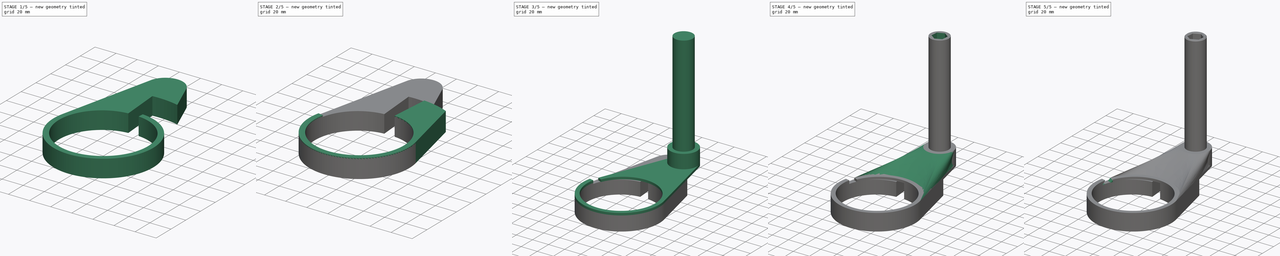
[diagram: build sequence overview — one tinted view per stage of 5, left to right]
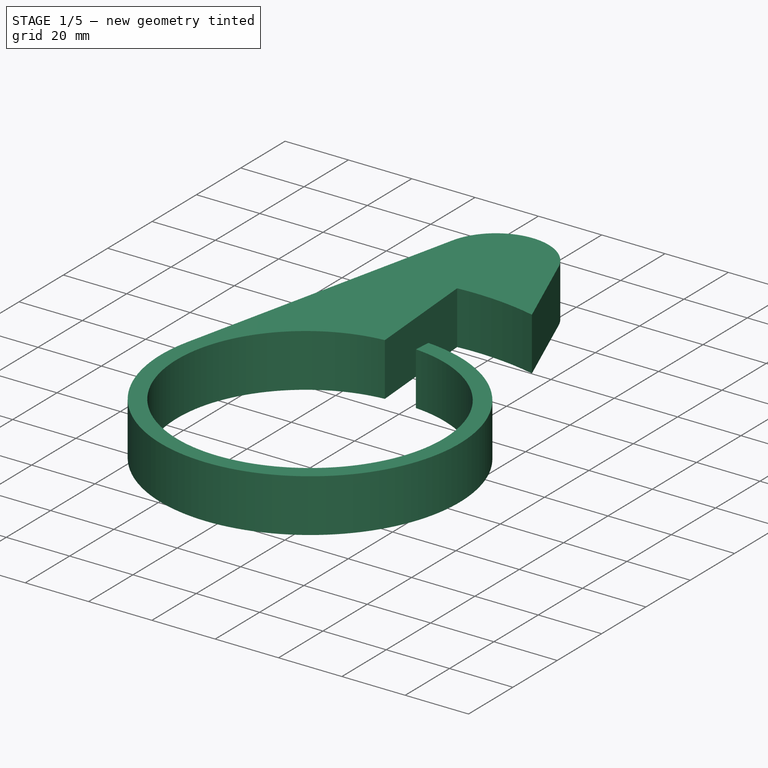
[diagram: stage 1 of 5 — iso view after this stage's code; geometry added in this stage tinted green]
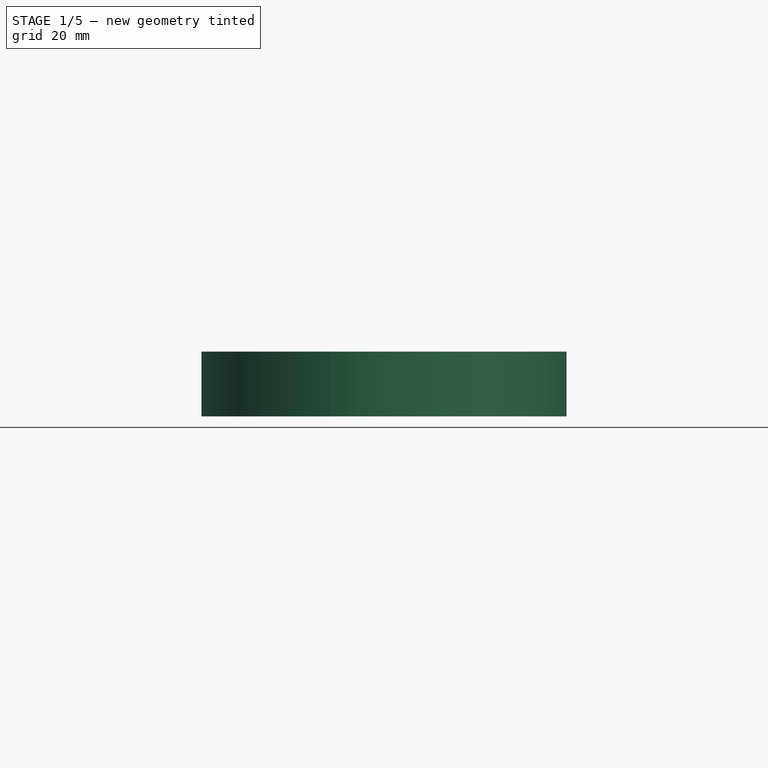
[diagram: stage 1 of 5 — front view after this stage's code; geometry added in this stage tinted green]
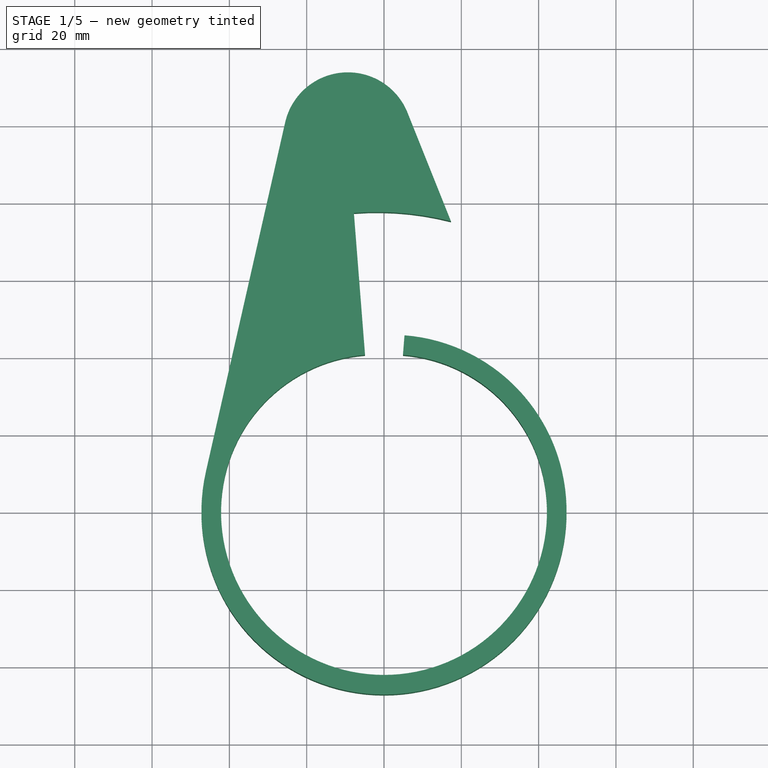
[diagram: stage 1 of 5 — top view after this stage's code; geometry added in this stage tinted green]
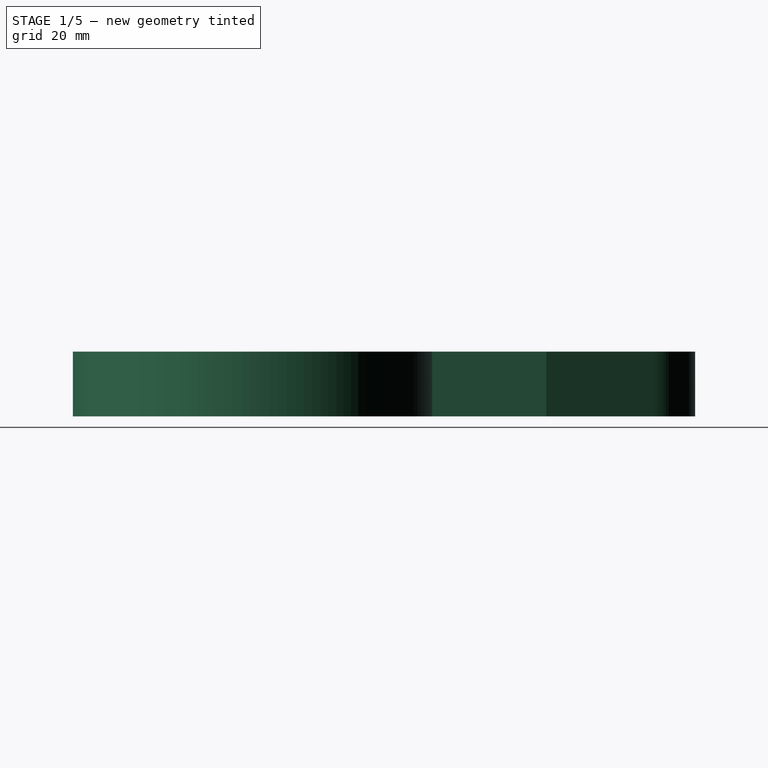
[diagram: stage 1 of 5 — right view after this stage's code; geometry added in this stage tinted green]
FCSTD DOCUMENT  (FreeCAD 0.21R33771 (Git))
Label: c20
License: All rights reserved
LicenseURL: http://en.wikipedia.org/wiki/All_rights_reserved
objects: Sketcher::SketchObject×18, PartDesign::Pad×8, PartDesign::Pocket×3, PartDesign::Line×2, PartDesign::Groove×2, PartDesign::Hole×2, PartDesign::AdditiveLoft×1, PartDesign::Chamfer×1, PartDesign::Body×1
note: 55 computed .brp shape members not serialized (recipe doc carries the construction recipe); baked Part::Feature solids carry a one-line shape summary decoded from their .brp

FEATURE [Sketcher::SketchObject] Sketch001
  FullyConstrained = true
  MapMode = 5
  Support = -> [XY_Plane]
  sketch-geometry (20):
    g0: Circle CenterX=-9.34661 CenterY=97.1218 CenterZ=0 NormalX=0 NormalY=0 NormalZ=1 AngleXU=0 Radius=16.637
    g1: ArcOfCircle CenterX=-1.73392 CenterY=0.393444 CenterZ=0 NormalX=0 NormalY=0 NormalZ=1 AngleXU=0 Radius=40.386 StartAngle=0.380211 EndAngle=2.91846
    g2: ArcOfCircle CenterX=-1.73392 CenterY=0.393444 CenterZ=0 NormalX=0 NormalY=0 NormalZ=1 AngleXU=0 Radius=45.4655 StartAngle=0.380211 EndAngle=2.91846
    g3: LineSegment StartX=-25.5712 StartY=100.803 StartZ=0 EndX=-46.0723 EndY=10.4543 EndZ=0
    g4: LineSegment StartX=40.4847 StartY=17.2664 StartZ=0 EndX=6.10228 EndY=103.296 EndZ=0
    g5: LineSegment StartX=-5.3011 StartY=45.7188 StartZ=0 EndX=-8.04129 EndY=80.5361 EndZ=0
    g6: ArcOfCircle CenterX=0 CenterY=0 CenterZ=0 NormalX=0 NormalY=0 NormalZ=1 AngleXU=0 Radius=42.164 StartAngle=2.91846 EndAngle=6.50632
    g7: LineSegment StartX=35.768 StartY=15.3814 StartZ=0 EndX=40.4847 EndY=17.2664 EndZ=0
    g8: LineSegment StartX=-46.0723 StartY=10.4543 StartZ=0 EndX=-41.1187 EndY=9.33025 EndZ=0
    g9: LineSegment StartX=41.1187 StartY=9.33025 StartZ=0 EndX=46.0723 EndY=10.4543 EndZ=0
    g10: ArcOfCircle CenterX=2e-16 CenterY=-4e-15 CenterZ=0 NormalX=0 NormalY=0 NormalZ=1 AngleXU=0 Radius=47.2435 StartAngle=2.91846 EndAngle=6.50632
    g11: Circle CenterX=9.34661 CenterY=97.1218 CenterZ=0 NormalX=0 NormalY=0 NormalZ=1 AngleXU=0 Radius=16.637
    g12: LineSegment StartX=25.5712 StartY=100.803 StartZ=0 EndX=46.0723 EndY=10.4543 EndZ=0
    g13: LineSegment StartX=-6.10228 StartY=103.296 StartZ=0 EndX=-40.4847 EndY=17.2664 EndZ=0
    g14: ArcOfCircle CenterX=1.73392 CenterY=0.393444 CenterZ=0 NormalX=0 NormalY=0 NormalZ=1 AngleXU=0 Radius=45.4655 StartAngle=0.223132 EndAngle=2.76138
    g15: LineSegment StartX=-40.4847 StartY=17.2664 StartZ=0 EndX=-35.768 EndY=15.3814 EndZ=0
    g16: LineSegment StartX=5.3011 StartY=45.7188 StartZ=0 EndX=8.04129 EndY=80.5361 EndZ=0
    g17: ArcOfCircle CenterX=-1.73392 CenterY=0.393444 CenterZ=0 NormalX=0 NormalY=0 NormalZ=1 AngleXU=0 Radius=62.928 StartAngle=1.1436 EndAngle=1.64934
    g18: ArcOfCircle CenterX=1.73392 CenterY=0.393444 CenterZ=0 NormalX=0 NormalY=0 NormalZ=1 AngleXU=0 Radius=62.928 StartAngle=0.986516 EndAngle=1.49226
    g19: ArcOfCircle CenterX=1.73392 CenterY=0.393444 CenterZ=0 NormalX=0 NormalY=0 NormalZ=1 AngleXU=0 Radius=40.386 StartAngle=0.223132 EndAngle=2.76138
  constraints (60):
    c: Coincident(g2,g1)
    c: Tangent(g4,g2) = -1.5708
    c: Tangent(g3,g2) = -1.5708
    c: Tangent(g3,g0) = -1.5708
    c: Tangent(g4,g0) = -1.5708
    c: PointOnObject(g5,g2)
    c: PointOnObject(g5,g0)
    c: Perpendicular(g2,g5)
    c: PointOnObject(g0,g5)
    c: Tangent(g6,g1) = -1.5708
    c: Coincident(g7,g1)
    c: Coincident(g7,g2)
    c: Perpendicular(g1,g7)
    c: Coincident(g8,g2)
    c: Coincident(g8,g1)
    c: Perpendicular(g1,g8)
    c: Angle(g7,g8) = 2.53825
    c: Coincident(g9,g6)
    c: Perpendicular(g6,g9)
    c: Angle(g9,g8) = -3.58786
    c: Equal(g9,g7)
    c: Coincident(g10,g2)
    c: PointOnObject(g10,g9)
    c: PointOnObject(g9,g10)
    c: Perpendicular(g10,g9)
    c: PointOnObject(g6,g-2)
    c: PointOnObject(g6,g-1)
    c: Equal(g11,g0)
    c: Symmetric(g0,g11,g-2)
    c: Tangent(g12,g10) = 1.5708
    c: Tangent(g12,g11) = 1.5708
    c: PointOnObject(g13,g11)
    c: Tangent(g13,g11)
    c: Tangent(g14,g13) = -1.5708
    c: Tangent(g14,g12) = 1.5708
    c: Equal(g14,g2)
    c: Coincident(g15,g13)
    c: Perpendicular(g14,g15)
    c: Equal(g15,g7)
    c: PointOnObject(g16,g14)
    c: PointOnObject(g16,g11)
    c: PointOnObject(g11,g16)
    c: Perpendicular(g14,g16)
    c: Coincident(g17,g1)
    c: PointOnObject(g17,g4)
    c: Coincident(g18,g14)
    c: PointOnObject(g18,g16)
    c: PointOnObject(g18,g12)
    c: Equal(g17,g18)
    c: Symmetric(g5,g5,g17)
    c: Distance(g5,g17) = 17.4625
    c: Coincident(g19,g6)
    c: Coincident(g19,g15)
    c: Perpendicular(g19,g9)
    c: Angle(g16,g5) = 0.15708
    c: Angle(g9,g7) = 0.15708
    c: PointOnObject(g12,g9)
    c: Diameter(g1) = 80.772
    c: Diameter(g11) = 33.274
    c: Diameter(g6) = 84.328
FEATURE [Sketcher::SketchObject] Sketch
  FullyConstrained = false
  MapMode = 5
  Support = -> [XY_Plane]
  expr: Constraints[11] = Sketch001.Constraints[16]
  expr: Constraints[42] = Sketch001.Constraints[50]
  expr: Constraints[46] = Sketch001.Constraints[55]
  expr: Constraints[48] = Sketch001.Constraints[57]
  expr: Constraints[49] = Sketch001.Constraints[58]
  expr: Constraints[50] = Sketch001.Constraints[59]
  sketch-geometry (22):
    g0: Circle CenterX=-9.34661 CenterY=97.1218 CenterZ=0 NormalX=0 NormalY=0 NormalZ=1 AngleXU=0 Radius=16.637
    g1: ArcOfCircle CenterX=-1.73392 CenterY=0.393444 CenterZ=0 NormalX=0 NormalY=0 NormalZ=1 AngleXU=0 Radius=40.386 StartAngle=1.64934 EndAngle=2.91846
    g2: ArcOfCircle CenterX=-1.73392 CenterY=0.393444 CenterZ=0 NormalX=0 NormalY=0 NormalZ=1 AngleXU=0 Radius=45.4655 StartAngle=1.64934 EndAngle=2.91846
    g3: LineSegment StartX=-25.5712 StartY=100.803 StartZ=0 EndX=-46.0723 EndY=10.4543 EndZ=0
    g4: LineSegment StartX=40.4847 StartY=17.2664 StartZ=0 EndX=6.10228 EndY=103.296 EndZ=0
    g5: LineSegment StartX=-5.3011 StartY=45.7188 StartZ=0 EndX=-8.04129 EndY=80.5361 EndZ=0
    g6: ArcOfCircle CenterX=0 CenterY=0 CenterZ=0 NormalX=0 NormalY=0 NormalZ=1 AngleXU=0 Radius=42.164 StartAngle=2.91846 EndAngle=6.50632
    g7: LineSegment StartX=35.768 StartY=15.3814 StartZ=0 EndX=40.4847 EndY=17.2664 EndZ=0
    g8: LineSegment StartX=-46.0723 StartY=10.4543 StartZ=0 EndX=-41.1187 EndY=9.33025 EndZ=0
    g9: LineSegment StartX=41.1187 StartY=9.33025 StartZ=0 EndX=46.0723 EndY=10.4543 EndZ=0
    g10: ArcOfCircle CenterX=-7.6e-15 CenterY=3.2e-15 CenterZ=0 NormalX=0 NormalY=0 NormalZ=1 AngleXU=0 Radius=47.2435 StartAngle=2.91846 EndAngle=6.50632
    g11: Circle CenterX=9.34661 CenterY=97.1218 CenterZ=0 NormalX=0 NormalY=0 NormalZ=1 AngleXU=0 Radius=16.637
    g12: LineSegment StartX=25.5712 StartY=100.803 StartZ=0 EndX=46.0723 EndY=10.4543 EndZ=0
    g13: LineSegment StartX=-6.10228 StartY=103.296 StartZ=0 EndX=-40.4847 EndY=17.2664 EndZ=0
    g14: ArcOfCircle CenterX=1.73392 CenterY=0.393444 CenterZ=0 NormalX=0 NormalY=0 NormalZ=1 AngleXU=0 Radius=45.4655 StartAngle=0.223132 EndAngle=1.49226
    g15: LineSegment StartX=-40.4847 StartY=17.2664 StartZ=0 EndX=-35.768 EndY=15.3814 EndZ=0
    g16: LineSegment StartX=5.3011 StartY=45.7188 StartZ=0 EndX=8.04129 EndY=80.5361 EndZ=0
    g17: ArcOfCircle CenterX=-1.73392 CenterY=0.393444 CenterZ=0 NormalX=0 NormalY=0 NormalZ=1 AngleXU=0 Radius=62.928 StartAngle=1.1436 EndAngle=1.64934
    g18: ArcOfCircle CenterX=1.73392 CenterY=0.393444 CenterZ=0 NormalX=0 NormalY=0 NormalZ=1 AngleXU=0 Radius=62.928 StartAngle=0.986516 EndAngle=1.49226
    g19: ArcOfCircle CenterX=1.73392 CenterY=0.393444 CenterZ=0 NormalX=0 NormalY=0 NormalZ=1 AngleXU=0 Radius=40.386 StartAngle=0.223132 EndAngle=1.49226
    g20: LineSegment StartX=-5.3011 StartY=45.7188 StartZ=0 EndX=-4.90257 EndY=40.6549 EndZ=0
    g21: LineSegment StartX=5.3011 StartY=45.7188 StartZ=0 EndX=4.90257 EndY=40.6549 EndZ=0
  constraints (57):
    c: Coincident(g2,g1)
    c: Tangent(g3,g2) = -1.5708
    c: Tangent(g3,g0) = -1.5708
    c: Tangent(g4,g0) = -1.5708
    c: PointOnObject(g5,g0)
    c: PointOnObject(g0,g5)
    c: Tangent(g6,g1) = -1.5708
    c: Perpendicular(g1,g7)
    c: Coincident(g8,g2)
    c: Coincident(g8,g1)
    c: Perpendicular(g1,g8)
    c: Angle(g7,g8) = 2.53825
    c: Coincident(g9,g6)
    c: Perpendicular(g6,g9)
    c: Angle(g9,g8) = -3.58786
    c: Equal(g9,g7)
    c: Coincident(g10,g2)
    c: PointOnObject(g10,g9)
    c: PointOnObject(g9,g10)
    c: Perpendicular(g10,g9)
    c: PointOnObject(g6,g-2)
    c: PointOnObject(g6,g-1)
    c: Equal(g11,g0)
    c: Symmetric(g0,g11,g-2)
    c: Tangent(g12,g10) = 1.5708
    c: Tangent(g12,g11) = 1.5708
    c: PointOnObject(g13,g11)
    c: Tangent(g13,g11)
    c: Tangent(g14,g12) = 1.5708
    c: Equal(g14,g2)
    c: Coincident(g15,g13)
    c: Perpendicular(g14,g15)
    c: Equal(g15,g7)
    c: PointOnObject(g16,g11)
    c: PointOnObject(g11,g16)
    c: Coincident(g17,g1)
    c: PointOnObject(g17,g4)
    c: Coincident(g18,g14)
    c: PointOnObject(g18,g16)
    c: PointOnObject(g18,g12)
    c: Equal(g17,g18)
    c: Symmetric(g5,g5,g17)
    c: Distance(g5,g17) = 17.4625
    c: Coincident(g19,g6)
    c: Perpendicular(g19,g9)
    c: Angle(g16,g5) = 0.15708
    c: Angle(g9,g7) = 0.15708
    c: PointOnObject(g12,g9)
    c: Diameter(g1) = 80.772
    c: Diameter(g11) = 33.274
    c: Diameter(g6) = 84.328
    c: Coincident(g20,g5)
    c: Coincident(g21,g16)
    c: Perpendicular(g2,g5) = 4.71239
    c: Perpendicular(g1,g20) = 1.5708
    c: Perpendicular(g19,g21) = 1.5708
    c: Perpendicular(g14,g16) = 4.71239
FEATURE [PartDesign::Pad] Pad
  Direction = (0,0,1)
  Length = 16.764
  Length2 = 10
  Profile = -> Sketch
  ReferenceAxis = -> Sketch [N_Axis]
  Type = 0
FEATURE [Sketcher::SketchObject] Sketch002
  FullyConstrained = false
  MapMode = 5
  Support = -> [XY_Plane]
  expr: Constraints[41] = Sketch001.Constraints[50]
  expr: Constraints[46] = Sketch001.Constraints[55]
  expr: Constraints[48] = Sketch001.Constraints[57]
  expr: Constraints[49] = Sketch001.Constraints[58]
  expr: Constraints[50] = Sketch001.Constraints[59]
  expr: Constraints[9] = Sketch001.Constraints[16]
  sketch-geometry (20):
    g0: ArcOfCircle CenterX=-9.34661 CenterY=97.1218 CenterZ=0 NormalX=0 NormalY=0 NormalZ=1 AngleXU=0 Radius=16.637 StartAngle=0.380211 EndAngle=2.91846
    g1: ArcOfCircle CenterX=-1.73392 CenterY=0.393444 CenterZ=0 NormalX=0 NormalY=0 NormalZ=1 AngleXU=0 Radius=40.386 StartAngle=0.380211 EndAngle=2.91846
    g2: ArcOfCircle CenterX=-1.73392 CenterY=0.393444 CenterZ=0 NormalX=0 NormalY=0 NormalZ=1 AngleXU=0 Radius=45.4655 StartAngle=1.64934 EndAngle=2.91846
    g3: LineSegment StartX=-25.5712 StartY=100.803 StartZ=0 EndX=-46.0723 EndY=10.4543 EndZ=0
    g4: LineSegment StartX=-5.3011 StartY=45.7188 StartZ=0 EndX=-6.67119 EndY=63.1274 EndZ=0
    g5: ArcOfCircle CenterX=0 CenterY=0 CenterZ=0 NormalX=0 NormalY=0 NormalZ=1 AngleXU=0 Radius=42.164 StartAngle=2.91846 EndAngle=6.50632
    g6: LineSegment StartX=35.768 StartY=15.3814 StartZ=0 EndX=40.4847 EndY=17.2664 EndZ=0
    g7: LineSegment StartX=-46.0723 StartY=10.4543 StartZ=0 EndX=-41.1187 EndY=9.33025 EndZ=0
    g8: LineSegment StartX=41.1187 StartY=9.33025 StartZ=0 EndX=46.0723 EndY=10.4543 EndZ=0
    g9: ArcOfCircle CenterX=2e-16 CenterY=-4e-15 CenterZ=0 NormalX=0 NormalY=0 NormalZ=1 AngleXU=0 Radius=47.2435 StartAngle=2.91846 EndAngle=6.50632
    g10: Circle CenterX=9.34661 CenterY=97.1218 CenterZ=0 NormalX=0 NormalY=0 NormalZ=1 AngleXU=0 Radius=16.637
    g11: LineSegment StartX=25.5712 StartY=100.803 StartZ=0 EndX=46.0723 EndY=10.4543 EndZ=0
    g12: LineSegment StartX=-6.10228 StartY=103.296 StartZ=0 EndX=-40.4847 EndY=17.2664 EndZ=0
    g13: ArcOfCircle CenterX=1.73392 CenterY=0.393444 CenterZ=0 NormalX=0 NormalY=0 NormalZ=1 AngleXU=0 Radius=45.4655 StartAngle=0.223132 EndAngle=2.76138
    g14: LineSegment StartX=-40.4847 StartY=17.2664 StartZ=0 EndX=-35.768 EndY=15.3814 EndZ=0
    g15: LineSegment StartX=5.3011 StartY=45.7188 StartZ=0 EndX=8.04129 EndY=80.5361 EndZ=0
    g16: ArcOfCircle CenterX=-1.73392 CenterY=0.393444 CenterZ=0 NormalX=0 NormalY=0 NormalZ=1 AngleXU=0 Radius=62.928 StartAngle=1.1436 EndAngle=1.64934
    g17: ArcOfCircle CenterX=1.73392 CenterY=0.393444 CenterZ=0 NormalX=0 NormalY=0 NormalZ=1 AngleXU=0 Radius=62.928 StartAngle=0.986516 EndAngle=1.49226
    g18: ArcOfCircle CenterX=1.73392 CenterY=0.393444 CenterZ=0 NormalX=0 NormalY=0 NormalZ=1 AngleXU=0 Radius=40.386 StartAngle=0.223132 EndAngle=2.76138
    g19: LineSegment StartX=24.3387 StartY=57.666 StartZ=0 EndX=6.10228 EndY=103.296 EndZ=0
  constraints (56):
    c: Coincident(g2,g1)
    c: Tangent(g3,g2) = -1.5708
    c: PointOnObject(g0,g4)
    c: Tangent(g5,g1) = -1.5708
    c: Coincident(g6,g1)
    c: Perpendicular(g1,g6)
    c: Coincident(g7,g2)
    c: Coincident(g7,g1)
    c: Perpendicular(g1,g7)
    c: Angle(g6,g7) = 2.53825
    c: Coincident(g8,g5)
    c: Perpendicular(g5,g8)
    c: Angle(g8,g7) = -3.58786
    c: Equal(g8,g6)
    c: Coincident(g9,g2)
    c: PointOnObject(g9,g8)
    c: PointOnObject(g8,g9)
    c: Perpendicular(g9,g8)
    c: PointOnObject(g5,g-2)
    c: PointOnObject(g5,g-1)
    c: Equal(g10,g0)
    c: Symmetric(g0,g10,g-2)
    c: Tangent(g11,g9) = 1.5708
    c: Tangent(g11,g10) = 1.5708
    c: PointOnObject(g12,g10)
    c: Tangent(g12,g10)
    c: Tangent(g13,g12) = -1.5708
    c: Tangent(g13,g11) = 1.5708
    c: Equal(g13,g2)
    c: Coincident(g14,g12)
    c: Perpendicular(g13,g14)
    c: Equal(g14,g6)
    c: PointOnObject(g15,g13)
    c: PointOnObject(g15,g10)
    c: PointOnObject(g10,g15)
    c: Perpendicular(g13,g15)
    c: Coincident(g16,g1)
    c: Coincident(g17,g13)
    c: PointOnObject(g17,g15)
    c: PointOnObject(g17,g11)
    c: Equal(g16,g17)
    c: Distance(g4,g16) = 17.4625
    c: Coincident(g18,g5)
    c: Coincident(g18,g14)
    c: Perpendicular(g18,g8)
    c: Angle(g15,g4) = 0.15708
    c: Angle(g8,g6) = 0.15708
    c: PointOnObject(g11,g8)
    c: Diameter(g1) = 80.772
    c: Diameter(g10) = 33.274
    c: Diameter(g5) = 84.328
    c: Tangent(g0,g3) = -1.5708
    c: Coincident(g0,g19) = -1.5708
    c: PointOnObject(g4,g16)
    c: Coincident(g19,g16)
    c: Perpendicular(g2,g4) = 4.71239
FEATURE [PartDesign::Pad] Pad001
  BaseFeature = -> Pad
  Direction = (0,0,1)
  Length = 10
  Length2 = 10
  Profile = -> Sketch002
  ReferenceAxis = -> Sketch002 [N_Axis]
  Type = 3
  UpToFace = -> Pad [Face10]
FEATURE [Sketcher::SketchObject] Sketch003
  ExternalGeometry = -> [Pad001]
  FullyConstrained = true
  MapMode = 5
  Placement = pos=(0,0,16.764) rot=(0,0,1;0rad)
  Support = -> [Pad001]
  sketch-geometry (4):
    g0: LineSegment StartX=-5.3011 StartY=45.7188 StartZ=0 EndX=-7.79218 EndY=77.3709 EndZ=0
    g1: ArcOfCircle CenterX=-1.73392 CenterY=0.393444 CenterZ=0 NormalX=0 NormalY=0 NormalZ=1 AngleXU=0 Radius=77.2155 StartAngle=1.32142 EndAngle=1.64934
    g2: LineSegment StartX=-5.3011 StartY=45.7188 StartZ=0 EndX=24.3387 EndY=57.666 EndZ=0
    g3: LineSegment StartX=24.3387 StartY=57.666 StartZ=0 EndX=17.323 EndY=75.2203 EndZ=0
  constraints (10):
    c: Coincident(g0,g-3)
    c: PointOnObject(g-4,g0)
    c: Distance(g0) = 31.75
    c: Coincident(g1,g-4)
    c: Coincident(g1,g0)
    c: PointOnObject(g1,g-5)
    c: Coincident(g2,g0)
    c: Coincident(g2,g-5)
    c: Coincident(g3,g2)
    c: Coincident(g3,g1)
FEATURE [PartDesign::Pocket] Pocket
  BaseFeature = -> Pad001
  Direction = (0,0,-1)
  Length = 5
  Length2 = 5
  Profile = -> Sketch003
  ReferenceAxis = -> Sketch003 [N_Axis]
  Type = 1
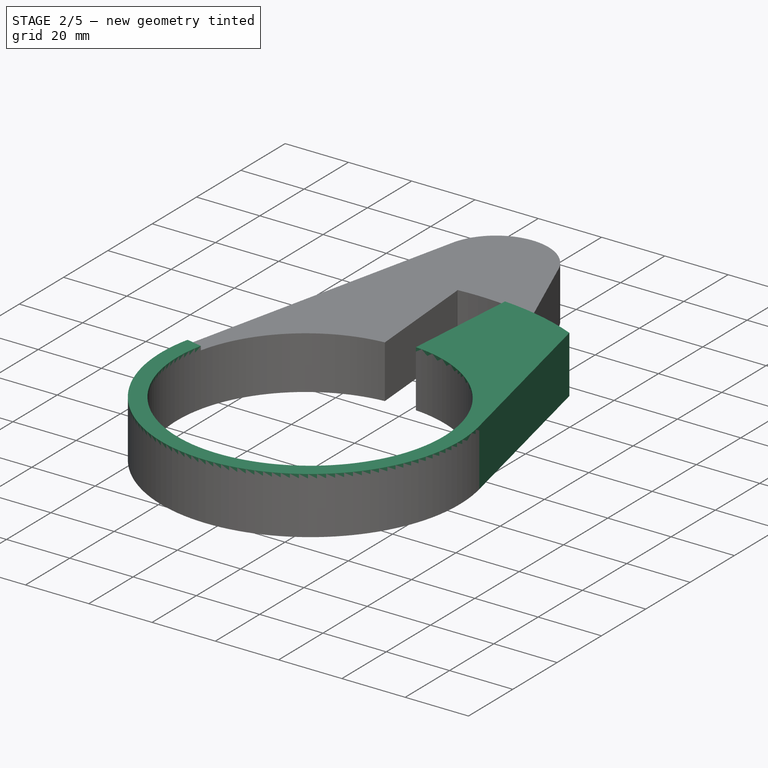
[diagram: stage 2 of 5 — iso view after this stage's code; geometry added in this stage tinted green]
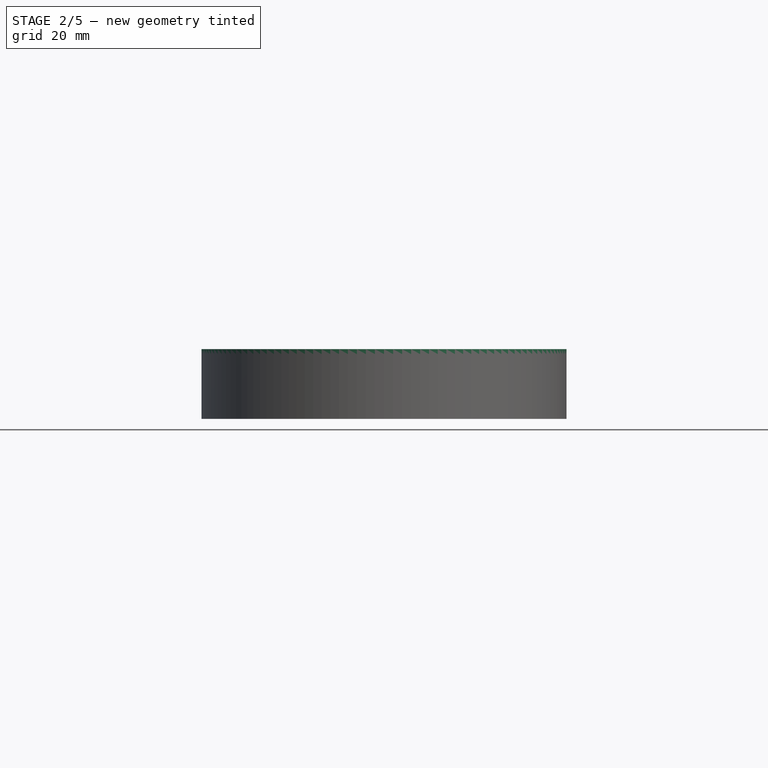
[diagram: stage 2 of 5 — front view after this stage's code; geometry added in this stage tinted green]
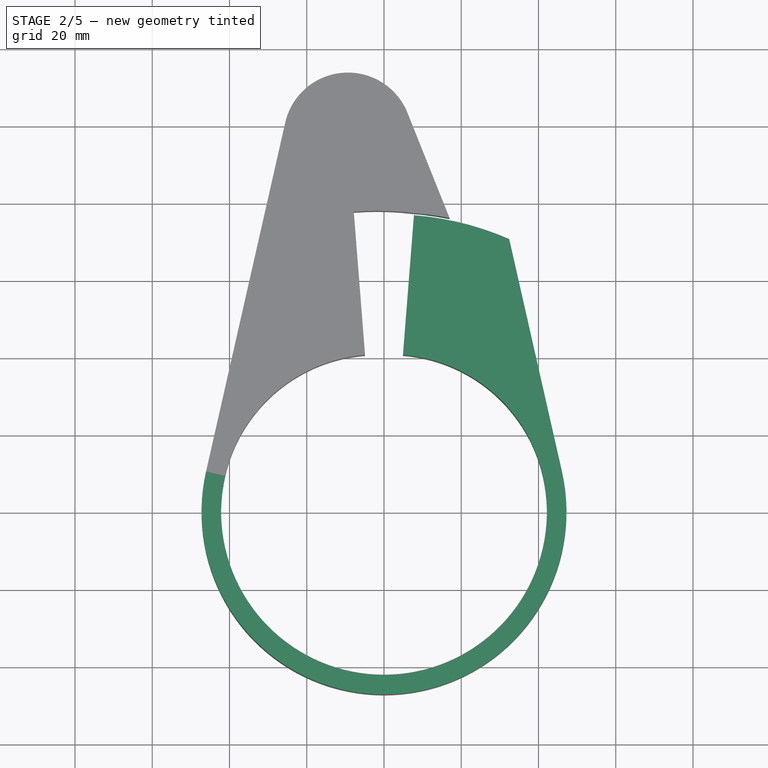
[diagram: stage 2 of 5 — top view after this stage's code; geometry added in this stage tinted green]
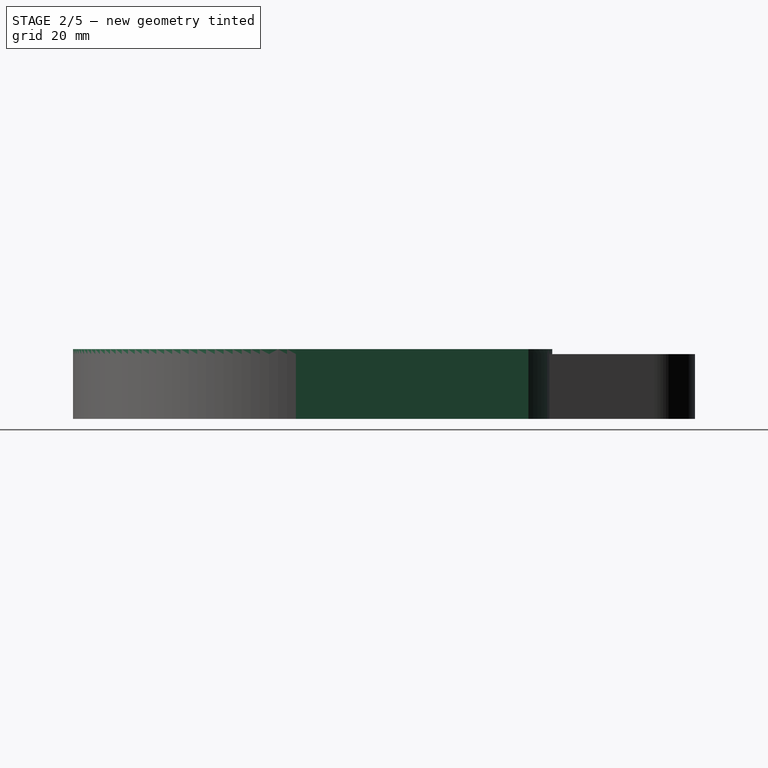
[diagram: stage 2 of 5 — right view after this stage's code; geometry added in this stage tinted green]
FEATURE [PartDesign::Line] DatumLine
  AttacherType = Attacher::AttachEngineLine
  Length = 20
  MapMode = 19
  Placement = pos=(-1.73392,0.393444,16.764) rot=(0,0,1;1.64934rad)
  ResizeMode = 0
  Support = -> [Pocket]
FEATURE [PartDesign::Line] DatumLine001
  AttacherType = Attacher::AttachEngineLine
  Length = 20
  MapMode = 19
  Placement = pos=(1.73392,0.393444,16.764) rot=(0,0,1;0.223132rad)
  ResizeMode = 0
  Support = -> [Pocket]
FEATURE [Sketcher::SketchObject] Sketch004
  FullyConstrained = false
  MapMode = 5
  Support = -> [XY_Plane]
  expr: Constraints[16] = Sketch001.Constraints[16]
  expr: Constraints[45] = Sketch001.Constraints[50]
  expr: Constraints[50] = Sketch001.Constraints[55]
  expr: Constraints[52] = Sketch001.Constraints[57]
  expr: Constraints[53] = Sketch001.Constraints[58]
  expr: Constraints[54] = Sketch001.Constraints[59]
  sketch-geometry (21):
    g0: Circle CenterX=-9.34661 CenterY=97.1218 CenterZ=0 NormalX=0 NormalY=0 NormalZ=1 AngleXU=0 Radius=16.637
    g1: ArcOfCircle CenterX=-1.73392 CenterY=0.393444 CenterZ=0 NormalX=0 NormalY=0 NormalZ=1 AngleXU=0 Radius=40.386 StartAngle=0.380211 EndAngle=2.91846
    g2: ArcOfCircle CenterX=-1.73392 CenterY=0.393444 CenterZ=0 NormalX=0 NormalY=0 NormalZ=1 AngleXU=0 Radius=45.4655 StartAngle=0.380211 EndAngle=2.91846
    g3: LineSegment StartX=-25.5712 StartY=100.803 StartZ=0 EndX=-46.0723 EndY=10.4543 EndZ=0
    g4: LineSegment StartX=40.4847 StartY=17.2664 StartZ=0 EndX=6.10228 EndY=103.296 EndZ=0
    g5: LineSegment StartX=-5.3011 StartY=45.7188 StartZ=0 EndX=-8.04129 EndY=80.5361 EndZ=0
    g6: ArcOfCircle CenterX=0 CenterY=0 CenterZ=0 NormalX=0 NormalY=0 NormalZ=1 AngleXU=0 Radius=42.164 StartAngle=2.91846 EndAngle=6.50632
    g7: LineSegment StartX=35.768 StartY=15.3814 StartZ=0 EndX=40.4847 EndY=17.2664 EndZ=0
    g8: LineSegment StartX=-46.0723 StartY=10.4543 StartZ=0 EndX=-41.1187 EndY=9.33025 EndZ=0
    g9: LineSegment StartX=41.1187 StartY=9.33025 StartZ=0 EndX=46.0723 EndY=10.4543 EndZ=0
    g10: ArcOfCircle CenterX=4e-15 CenterY=-2e-16 CenterZ=0 NormalX=0 NormalY=0 NormalZ=1 AngleXU=0 Radius=47.2435 StartAngle=2.91846 EndAngle=6.50632
    g11: Circle CenterX=9.34661 CenterY=97.1218 CenterZ=0 NormalX=0 NormalY=0 NormalZ=1 AngleXU=0 Radius=16.637
    g12: LineSegment StartX=32.2617 StartY=71.3179 StartZ=0 EndX=46.0723 EndY=10.4543 EndZ=0
    g13: LineSegment StartX=-6.10228 StartY=103.296 StartZ=0 EndX=-40.4846 EndY=17.2666 EndZ=0
    g14: ArcOfCircle CenterX=1.73392 CenterY=0.393444 CenterZ=0 NormalX=0 NormalY=0 NormalZ=1 AngleXU=0 Radius=45.4655 StartAngle=0.223132 EndAngle=1.49226
    g15: LineSegment StartX=-40.4846 StartY=17.2666 StartZ=0 EndX=-35.7678 EndY=15.3815 EndZ=0
    g16: LineSegment StartX=5.3011 StartY=45.7188 StartZ=0 EndX=7.79218 EndY=77.3709 EndZ=0
    g17: ArcOfCircle CenterX=-1.73392 CenterY=0.393444 CenterZ=0 NormalX=0 NormalY=0 NormalZ=1 AngleXU=0 Radius=62.928 StartAngle=1.1436 EndAngle=1.64934
    g18: ArcOfCircle CenterX=1.73392 CenterY=0.393444 CenterZ=0 NormalX=0 NormalY=0 NormalZ=1 AngleXU=0 Radius=62.928 StartAngle=0.986516 EndAngle=1.49226
    g19: ArcOfCircle CenterX=1.73395 CenterY=0.393451 CenterZ=0 NormalX=0 NormalY=0 NormalZ=1 AngleXU=0 Radius=40.386 StartAngle=0.223132 EndAngle=2.76138
    g20: ArcOfCircle CenterX=1.73392 CenterY=0.393444 CenterZ=0 NormalX=0 NormalY=0 NormalZ=1 AngleXU=0 Radius=77.2155 StartAngle=1.16434 EndAngle=1.49226
  constraints (60):
    c: Coincident(g2,g1)
    c: Tangent(g4,g2) = -1.5708
    c: Tangent(g3,g2) = -1.5708
    c: Tangent(g3,g0) = -1.5708
    c: Tangent(g4,g0) = -1.5708
    c: PointOnObject(g5,g2)
    c: PointOnObject(g5,g0)
    c: Perpendicular(g2,g5)
    c: PointOnObject(g0,g5)
    c: Tangent(g6,g1) = -1.5708
    c: Coincident(g7,g1)
    c: Coincident(g7,g2)
    c: Perpendicular(g1,g7)
    c: Coincident(g8,g2)
    c: Coincident(g8,g1)
    c: Perpendicular(g1,g8)
    c: Angle(g7,g8) = 2.53825
    c: Coincident(g9,g6)
    c: Perpendicular(g6,g9)
    c: Angle(g9,g8) = -3.58786
    c: Equal(g9,g7)
    c: Coincident(g10,g2)
    c: PointOnObject(g10,g9)
    c: PointOnObject(g9,g10)
    c: Perpendicular(g10,g9)
    c: PointOnObject(g6,g-2)
    c: PointOnObject(g6,g-1)
    c: Equal(g11,g0)
    c: Symmetric(g0,g11,g-2)
    c: Tangent(g12,g10) = 1.5708
    c: PointOnObject(g13,g11)
    c: Tangent(g13,g11)
    c: Tangent(g14,g12) = 1.5708
    c: Equal(g14,g2)
    c: Coincident(g15,g13)
    c: Perpendicular(g14,g15)
    c: Equal(g15,g7)
    c: PointOnObject(g11,g16)
    c: Coincident(g17,g1)
    c: PointOnObject(g17,g4)
    c: Coincident(g18,g14)
    c: PointOnObject(g18,g16)
    c: PointOnObject(g18,g12)
    c: Equal(g17,g18)
    c: Symmetric(g5,g5,g17)
    c: Distance(g5,g17) = 17.4625
    c: Coincident(g19,g6)
    c: Coincident(g19,g15)
    c: Perpendicular(g19,g9)
    c: Angle(g16,g5) = 0.15708
    c: Angle(g9,g7) = 0.15708
    c: PointOnObject(g12,g9)
    c: Diameter(g1) = 80.772
    c: Diameter(g11) = 33.274
    c: Diameter(g6) = 84.328
    c: Perpendicular(g14,g16) = 4.71239
    c: Coincident(g20,g14)
    c: Distance(g14,g20) = 31.75
    c: Coincident(g16,g20)
    c: Coincident(g12,g20)
FEATURE [PartDesign::Pad] Pad002
  BaseFeature = -> Pocket
  Direction = (0,0,1)
  Length = 10
  Length2 = 10
  Profile = -> Sketch004
  ReferenceAxis = -> Sketch004 [N_Axis]
  Type = 3
  UpToFace = -> Pocket [Face8]
FEATURE [Sketcher::SketchObject] Sketch005
  ExternalGeometry = -> [Pad002]
  FullyConstrained = false
  MapMode = 5
  Placement = pos=(1.69247,-0.133201,0) rot=(-0.54713,0.591882,0.591882;4.14287rad)
  Support = -> [Pad002]
  sketch-geometry (4):
    g0: LineSegment StartX=-77.7437 StartY=18.034 StartZ=0 EndX=-77.187 EndY=18.034 EndZ=0
    g1: LineSegment StartX=-77.187 StartY=18.034 StartZ=0 EndX=-77.187 EndY=0 EndZ=0
    g2: LineSegment StartX=-77.187 StartY=0 StartZ=0 EndX=-77.7437 EndY=0 EndZ=0
    g3: LineSegment StartX=-77.7437 StartY=0 StartZ=0 EndX=-77.7437 EndY=18.034 EndZ=0
  constraints (8):
    c: Coincident(g0,g1)
    c: Coincident(g1,g2)
    c: Coincident(g2,g3)
    c: Coincident(g3,g0)
    c: Horizontal(g0)
    c: Horizontal(g2)
    c: Vertical(g1)
    c: Vertical(g3)
FEATURE [PartDesign::Groove] Groove
  Angle = 30
  Axis = (1e-16,-3e-16,1)
  Base = (1.73392,0.393444,16.764)
  BaseFeature = -> Pad002
  Profile = -> Sketch005
  ReferenceAxis = -> DatumLine001
  Reversed = true
FEATURE [Sketcher::SketchObject] Sketch006
  ExternalGeometry = -> [Pad002]
  FullyConstrained = false
  MapMode = 5
  Placement = pos=(1.69247,-0.133201,0) rot=(-0.54713,0.591882,0.591882;4.14287rad)
  Support = -> [Groove]
  sketch-geometry (4):
    g0: LineSegment StartX=-77.7437 StartY=18.034 StartZ=0 EndX=-77.187 EndY=18.034 EndZ=0
    g1: LineSegment StartX=-77.187 StartY=18.034 StartZ=0 EndX=-77.187 EndY=0 EndZ=0
    g2: LineSegment StartX=-77.187 StartY=0 StartZ=0 EndX=-77.7437 EndY=0 EndZ=0
    g3: LineSegment StartX=-77.7437 StartY=0 StartZ=0 EndX=-77.7437 EndY=18.034 EndZ=0
  constraints (8):
    c: Coincident(g0,g1)
    c: Coincident(g1,g2)
    c: Coincident(g2,g3)
    c: Coincident(g3,g0)
    c: Horizontal(g0)
    c: Horizontal(g2)
    c: Vertical(g1)
    c: Vertical(g3)
FEATURE [PartDesign::Groove] Groove001
  Angle = 11.6
  Axis = (2e-16,0,1)
  Base = (-1.73392,0.393444,16.764)
  BaseFeature = -> Groove
  Profile = -> Sketch006
  ReferenceAxis = -> DatumLine
FEATURE [Sketcher::SketchObject] Sketch007
  ExternalGeometry = -> [Groove001]
  FullyConstrained = true
  MapMode = 5
  Placement = pos=(0,0,16.764) rot=(0,0,1;0rad)
  Support = -> [Groove001]
  sketch-geometry (7):
    g0: ArcOfCircle CenterX=0 CenterY=0 CenterZ=0 NormalX=0 NormalY=0 NormalZ=1 AngleXU=0 Radius=42.164 StartAngle=2.91846 EndAngle=6.50632
    g1: ArcOfCircle CenterX=0 CenterY=0 CenterZ=0 NormalX=0 NormalY=0 NormalZ=1 AngleXU=0 Radius=47.2435 StartAngle=2.91846 EndAngle=6.50632
    g2: ArcOfCircle CenterX=1.73392 CenterY=0.393444 CenterZ=0 NormalX=0 NormalY=0 NormalZ=1 AngleXU=0 Radius=40.386 StartAngle=0.223133 EndAngle=1.49226
    g3: ArcOfCircle CenterX=1.73392 CenterY=0.393444 CenterZ=0 NormalX=0 NormalY=0 NormalZ=1 AngleXU=0 Radius=76.6587 StartAngle=1.15904 EndAngle=1.49226
    g4: LineSegment StartX=4.90257 StartY=40.6549 StartZ=0 EndX=7.7485 EndY=76.8159 EndZ=0
    g5: LineSegment StartX=32.4144 StartY=70.6449 StartZ=0 EndX=46.0723 EndY=10.4543 EndZ=0
    g6: LineSegment StartX=-46.0723 StartY=10.4543 StartZ=0 EndX=-41.1187 EndY=9.33025 EndZ=0
  constraints (17):
    c: Coincident(g0,g-7)
    c: Coincident(g0,g-7)
    c: Coincident(g1,g0)
    c: Coincident(g1,g-6)
    c: Coincident(g2,g-8)
    c: Coincident(g2,g0)
    c: Coincident(g3,g2)
    c: Coincident(g3,g-3)
    c: Coincident(g4,g2)
    c: Coincident(g4,g3)
    c: Coincident(g5,g3)
    c: Coincident(g6,g1)
    c: Coincident(g6,g0)
    c: PointOnObject(g-5,g5)
    c: PointOnObject(g2,g-3)
    c: Tangent(g5,g1) = 1.5708
    c: PointOnObject(g2,g-8)
FEATURE [PartDesign::Pad] Pad003
  BaseFeature = -> Groove001
  Direction = (0,0,1)
  Length = 1.27
  Length2 = 10
  Profile = -> Sketch007
  ReferenceAxis = -> Sketch007 [N_Axis]
  Type = 0
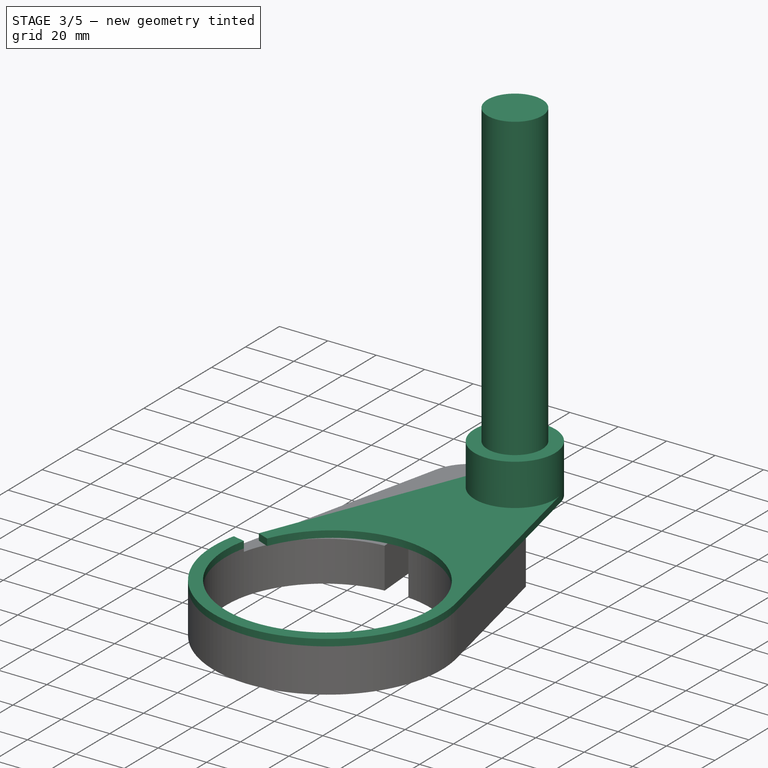
[diagram: stage 3 of 5 — iso view after this stage's code; geometry added in this stage tinted green]
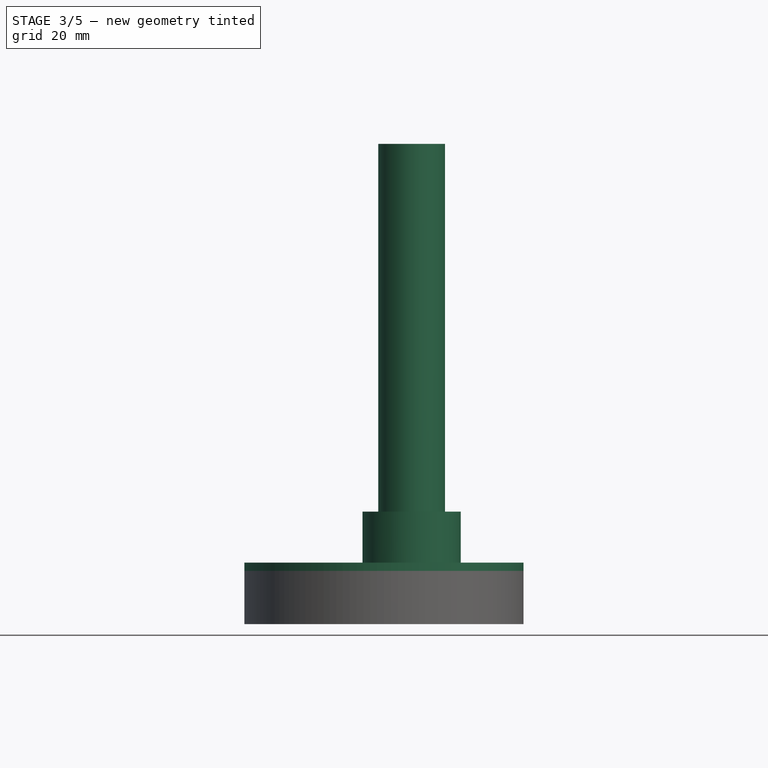
[diagram: stage 3 of 5 — front view after this stage's code; geometry added in this stage tinted green]
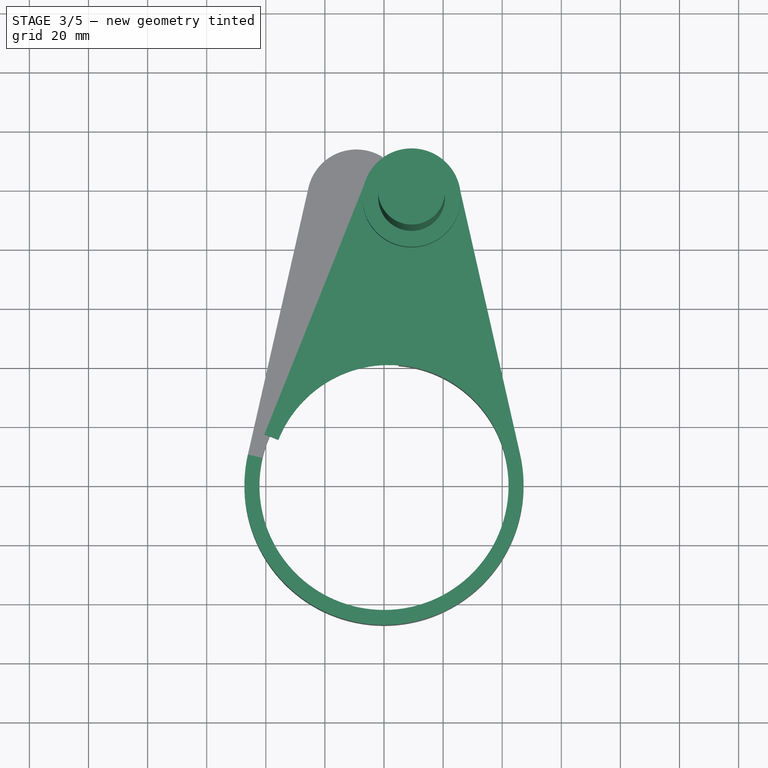
[diagram: stage 3 of 5 — top view after this stage's code; geometry added in this stage tinted green]
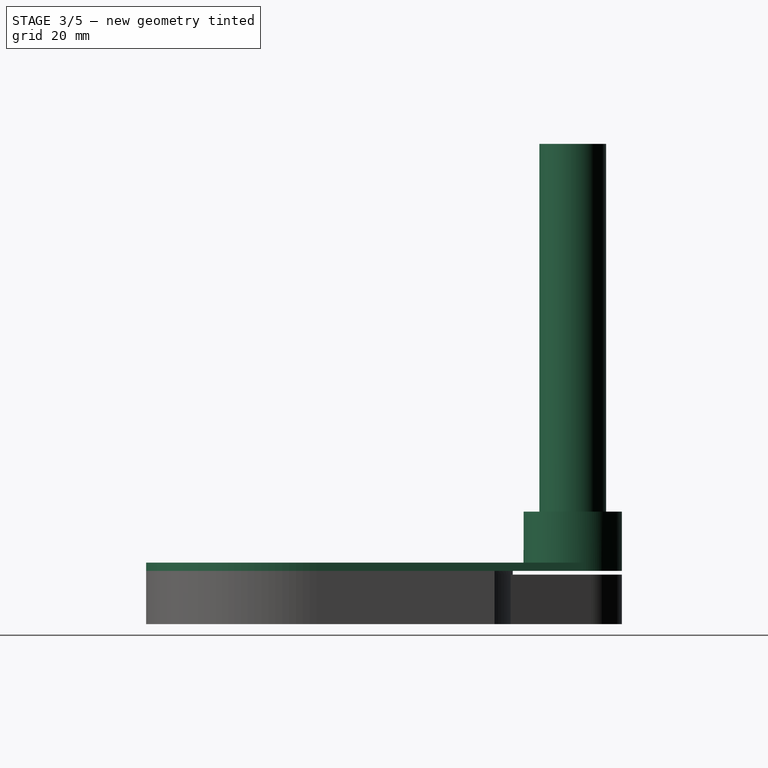
[diagram: stage 3 of 5 — right view after this stage's code; geometry added in this stage tinted green]
FEATURE [Sketcher::SketchObject] Sketch008
  FullyConstrained = true
  MapMode = 5
  Placement = pos=(0,0,18.034) rot=(0,0,1;0rad)
  Support = -> [Pad003]
  expr: Constraints[16] = Sketch001.Constraints[16]
  expr: Constraints[39] = Sketch001.Constraints[50]
  expr: Constraints[43] = Sketch001.Constraints[55]
  expr: Constraints[45] = Sketch001.Constraints[57]
  expr: Constraints[46] = Sketch001.Constraints[58]
  expr: Constraints[47] = Sketch001.Constraints[59]
  sketch-geometry (18):
    g0: Circle CenterX=-9.34661 CenterY=97.1218 CenterZ=0 NormalX=0 NormalY=0 NormalZ=1 AngleXU=0 Radius=16.637
    g1: ArcOfCircle CenterX=-1.73392 CenterY=0.393444 CenterZ=0 NormalX=0 NormalY=0 NormalZ=1 AngleXU=0 Radius=40.386 StartAngle=0.380211 EndAngle=2.91846
    g2: ArcOfCircle CenterX=-1.73392 CenterY=0.393444 CenterZ=0 NormalX=0 NormalY=0 NormalZ=1 AngleXU=0 Radius=45.4655 StartAngle=0.380211 EndAngle=2.91846
    g3: LineSegment StartX=-25.5712 StartY=100.803 StartZ=0 EndX=-46.0723 EndY=10.4543 EndZ=0
    g4: LineSegment StartX=40.4847 StartY=17.2664 StartZ=0 EndX=6.10228 EndY=103.296 EndZ=0
    g5: LineSegment StartX=-5.3011 StartY=45.7188 StartZ=0 EndX=-8.04129 EndY=80.5361 EndZ=0
    g6: ArcOfCircle CenterX=0 CenterY=0 CenterZ=0 NormalX=0 NormalY=0 NormalZ=1 AngleXU=0 Radius=42.164 StartAngle=2.91846 EndAngle=6.50632
    g7: LineSegment StartX=35.768 StartY=15.3814 StartZ=0 EndX=40.4847 EndY=17.2664 EndZ=0
    g8: LineSegment StartX=-46.0723 StartY=10.4543 StartZ=0 EndX=-41.1187 EndY=9.33025 EndZ=0
    g9: LineSegment StartX=41.1187 StartY=9.33025 StartZ=0 EndX=46.0723 EndY=10.4543 EndZ=0
    g10: ArcOfCircle CenterX=2e-16 CenterY=-4e-15 CenterZ=0 NormalX=0 NormalY=0 NormalZ=1 AngleXU=0 Radius=47.2435 StartAngle=2.91846 EndAngle=6.50632
    g11: ArcOfCircle CenterX=9.34661 CenterY=97.1218 CenterZ=0 NormalX=0 NormalY=0 NormalZ=1 AngleXU=0 Radius=16.637 StartAngle=0.223132 EndAngle=2.76138
    g12: LineSegment StartX=25.5712 StartY=100.803 StartZ=0 EndX=46.0723 EndY=10.4543 EndZ=0
    g13: LineSegment StartX=-6.10228 StartY=103.296 StartZ=0 EndX=-40.4847 EndY=17.2664 EndZ=0
    g14: ArcOfCircle CenterX=1.73392 CenterY=0.393444 CenterZ=0 NormalX=0 NormalY=0 NormalZ=1 AngleXU=0 Radius=45.4655 StartAngle=0.223132 EndAngle=2.76138
    g15: LineSegment StartX=-40.4847 StartY=17.2664 StartZ=0 EndX=-35.768 EndY=15.3814 EndZ=0
    g16: ArcOfCircle CenterX=-1.73392 CenterY=0.393444 CenterZ=0 NormalX=0 NormalY=0 NormalZ=1 AngleXU=0 Radius=62.928 StartAngle=1.1436 EndAngle=1.64934
    g17: ArcOfCircle CenterX=1.73392 CenterY=0.393444 CenterZ=0 NormalX=0 NormalY=0 NormalZ=1 AngleXU=0 Radius=40.386 StartAngle=0.223132 EndAngle=2.76138
  constraints (50):
    c: Coincident(g2,g1)
    c: Tangent(g4,g2) = -1.5708
    c: Tangent(g3,g2) = -1.5708
    c: Tangent(g3,g0) = -1.5708
    c: Tangent(g4,g0) = -1.5708
    c: PointOnObject(g5,g2)
    c: PointOnObject(g5,g0)
    c: Perpendicular(g2,g5)
    c: PointOnObject(g0,g5)
    c: Tangent(g6,g1) = -1.5708
    c: Coincident(g7,g1)
    c: Coincident(g7,g2)
    c: Perpendicular(g1,g7)
    c: Coincident(g8,g2)
    c: Coincident(g8,g1)
    c: Perpendicular(g1,g8)
    c: Angle(g7,g8) = 2.53825
    c: Coincident(g9,g6)
    c: Perpendicular(g6,g9)
    c: Angle(g9,g8) = -3.58786
    c: Equal(g9,g7)
    c: Coincident(g10,g2)
    c: PointOnObject(g10,g9)
    c: PointOnObject(g9,g10)
    c: Perpendicular(g10,g9)
    c: PointOnObject(g6,g-2)
    c: PointOnObject(g6,g-1)
    c: Equal(g11,g0)
    c: Symmetric(g0,g11,g-2)
    c: Tangent(g12,g10) = 1.5708
    c: Tangent(g14,g13) = -1.5708
    c: Tangent(g14,g12) = 1.5708
    c: Equal(g14,g2)
    c: Coincident(g15,g13)
    c: Perpendicular(g14,g15)
    c: Equal(g15,g7)
    c: Coincident(g16,g1)
    c: PointOnObject(g16,g4)
    c: Symmetric(g5,g5,g16)
    c: Distance(g5,g16) = 17.4625
    c: Coincident(g17,g6)
    c: Coincident(g17,g15)
    c: Perpendicular(g17,g9)
    c: Angle(g9,g7) = 0.15708
    c: PointOnObject(g12,g9)
    c: Diameter(g1) = 80.772
    c: Diameter(g11) = 33.274
    c: Diameter(g6) = 84.328
    c: Tangent(g11,g13) = -1.5708
    c: Tangent(g11,g12) = 1.5708
FEATURE [PartDesign::Pad] Pad004
  BaseFeature = -> Pad003
  Direction = (0,0,1)
  Length = 10
  Length2 = 10
  Offset = 20.828
  Profile = -> Sketch008
  ReferenceAxis = -> Sketch008 [N_Axis]
  Type = 3
  UpToFace = -> Pad003 [Face12]
FEATURE [Sketcher::SketchObject] Sketch010
  ExternalGeometry = -> [Pad004]
  FullyConstrained = true
  MapMode = 5
  Placement = pos=(0,0,20.828) rot=(0,0,1;0rad)
  Support = -> [Pad004]
  sketch-geometry (4):
    g0: LineSegment StartX=-40.4847 StartY=17.2664 StartZ=0 EndX=-6.10228 EndY=103.296 EndZ=0
    g1: LineSegment StartX=25.5712 StartY=100.803 StartZ=0 EndX=46.0723 EndY=10.4543 EndZ=0
    g2: ArcOfCircle CenterX=9.34661 CenterY=97.1218 CenterZ=0 NormalX=0 NormalY=0 NormalZ=1 AngleXU=0 Radius=16.637 StartAngle=0.223132 EndAngle=2.76138
    g3: ArcOfCircle CenterX=1.73392 CenterY=0.393444 CenterZ=0 NormalX=0 NormalY=0 NormalZ=1 AngleXU=0 Radius=45.4655 StartAngle=0.223132 EndAngle=2.76138
  constraints (9):
    c: Tangent(g2,g1) = 1.5708
    c: Coincident(g3,g1)
    c: Coincident(g0,g3)
    c: Coincident(g0,g-4)
    c: Coincident(g1,g-3)
    c: Equal(g3,g-3)
    c: Tangent(g2,g0) = 1.5708
    c: Coincident(g-5,g2)
    c: Equal(g2,g-5)
FEATURE [Sketcher::SketchObject] Sketch011
  ExternalGeometry = -> [Pad004]
  FullyConstrained = true
  MapMode = 5
  Placement = pos=(0,0,20.828) rot=(0,0,1;0rad)
  Support = -> [Pad004]
  sketch-geometry (1):
    g0: Circle CenterX=9.34661 CenterY=97.1218 CenterZ=0 NormalX=0 NormalY=0 NormalZ=1 AngleXU=0 Radius=16.637
  constraints (2):
    c: Coincident(g0,g-3)
    c: PointOnObject(g-3,g0)
FEATURE [PartDesign::Pad] Pad005
  BaseFeature = -> Pad004
  Direction = (0,0,1)
  Length = 10
  Length2 = 10
  Offset = 38.1
  Profile = -> Sketch011
  ReferenceAxis = -> Sketch011 [N_Axis]
  Type = 3
  UpToFace = -> Pad004 [Face6]
FEATURE [Sketcher::SketchObject] Sketch012
  ExternalGeometry = -> [Pad005]
  FullyConstrained = true
  MapMode = 5
  Placement = pos=(0,0,38.1) rot=(0,0,1;0rad)
  Support = -> [Pad005]
  sketch-geometry (1):
    g0: Circle CenterX=9.34661 CenterY=97.1218 CenterZ=0 NormalX=0 NormalY=0 NormalZ=1 AngleXU=0 Radius=11.303
  constraints (2):
    c: Coincident(g0,g-3)
    c: Diameter(g0) = 22.606
FEATURE [PartDesign::Pad] Pad006
  BaseFeature = -> Pad005
  Direction = (0,0,1)
  Length = 124.46
  Length2 = 10
  Profile = -> Sketch012
  ReferenceAxis = -> Sketch012 [N_Axis]
  Type = 0
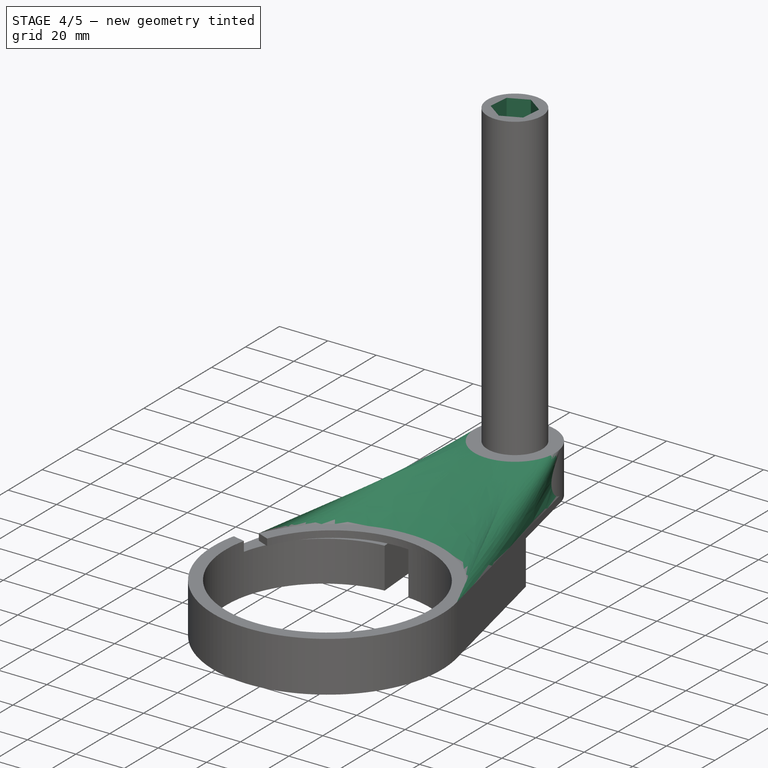
[diagram: stage 4 of 5 — iso view after this stage's code; geometry added in this stage tinted green]
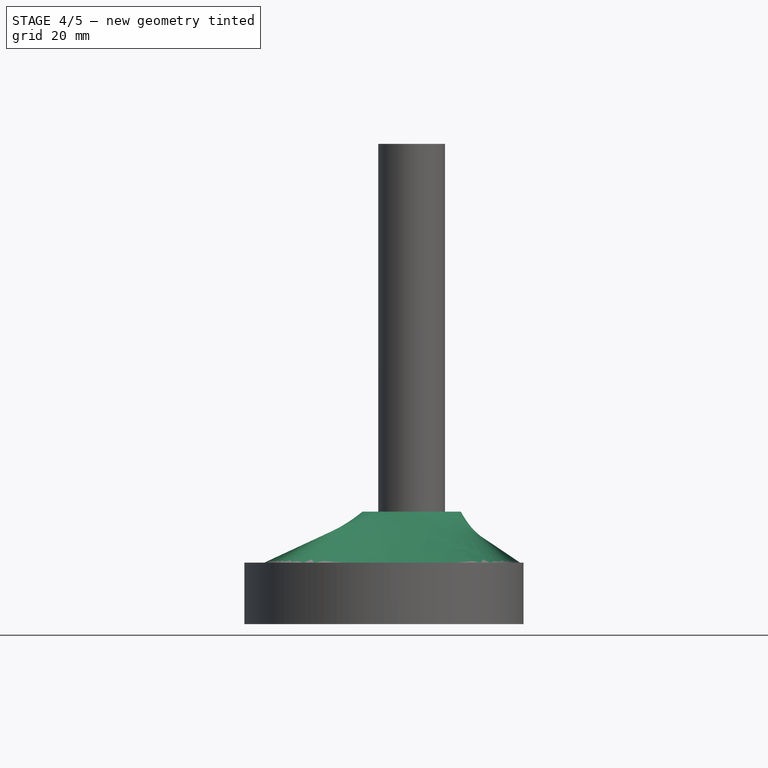
[diagram: stage 4 of 5 — front view after this stage's code; geometry added in this stage tinted green]
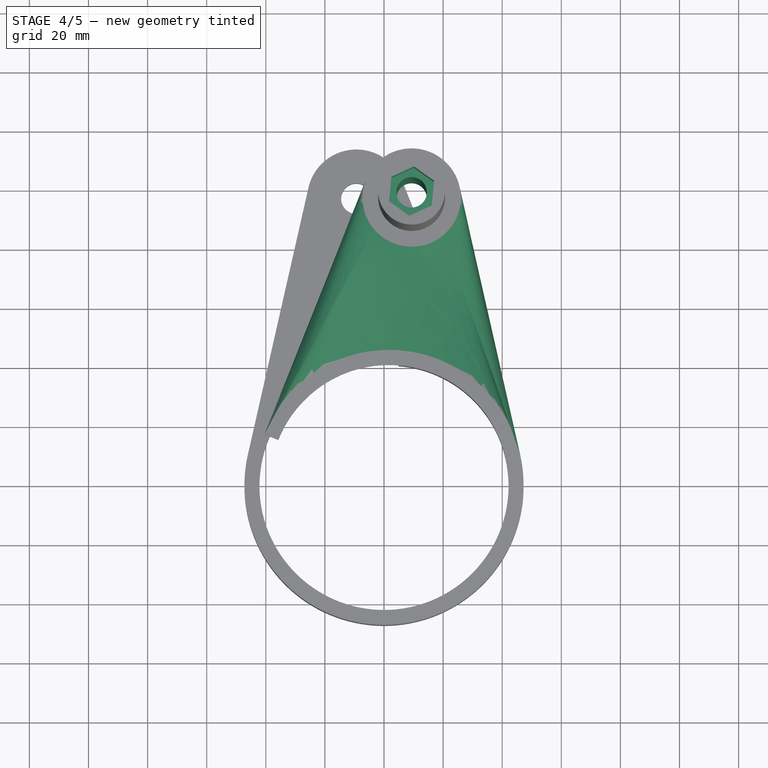
[diagram: stage 4 of 5 — top view after this stage's code; geometry added in this stage tinted green]
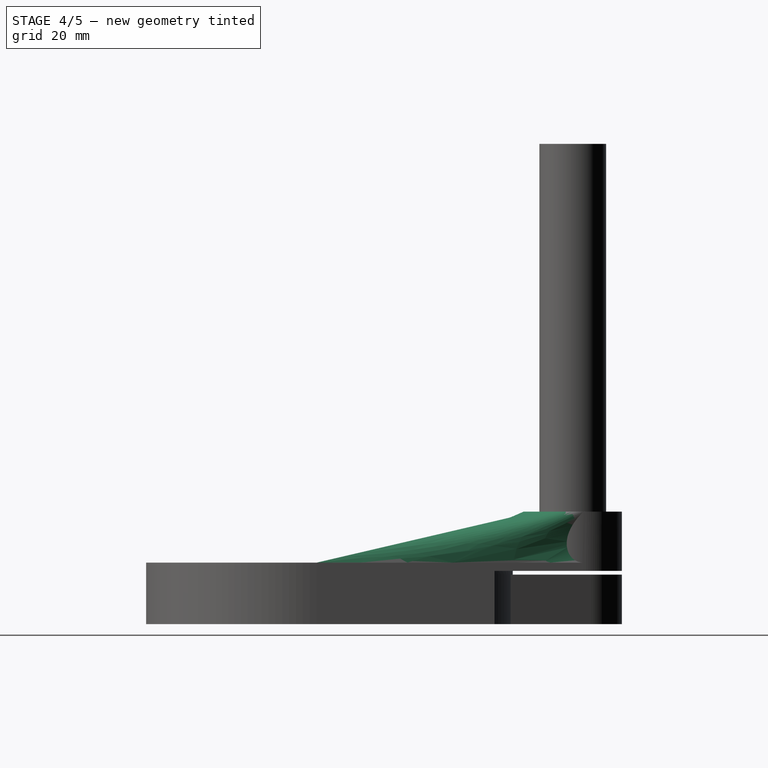
[diagram: stage 4 of 5 — right view after this stage's code; geometry added in this stage tinted green]
FEATURE [Sketcher::SketchObject] Sketch013
  ExternalGeometry = -> [Pad006]
  FullyConstrained = true
  MapMode = 5
  Placement = pos=(0,0,38.1) rot=(0,0,1;0rad)
  Support = -> [Pad006]
  sketch-geometry (1):
    g0: Circle CenterX=9.34661 CenterY=97.1218 CenterZ=0 NormalX=0 NormalY=0 NormalZ=1 AngleXU=0 Radius=16.637
  constraints (2):
    c: Coincident(g0,g-3)
    c: Tangent(g0,g-3)
FEATURE [PartDesign::AdditiveLoft] AdditiveLoft
  BaseFeature = -> Pad006
  Closed = false
  Profile = -> Sketch010
  Ruled = false
  Sections = -> [Sketch013]
FEATURE [Sketcher::SketchObject] Sketch014
  ExternalGeometry = -> [Pad006]
  FullyConstrained = true
  MapMode = 5
  Placement = pos=(0,0,18.034) rot=(1,0,0;3.14159rad)
  Support = -> [Pad006]
  sketch-geometry (1):
    g0: Circle CenterX=9.34661 CenterY=-97.1218 CenterZ=0 NormalX=0 NormalY=0 NormalZ=1 AngleXU=0 Radius=3.175
  constraints (2):
    c: Coincident(g0,g-3)
    c: Diameter(g0) = 6.35
FEATURE [PartDesign::Hole] Hole
  BaseFeature = -> AdditiveLoft
  CustomThreadClearance = 0
  Depth = 499.566
  DepthType = 1
  Diameter = 10.3
  DrillForDepth = false
  DrillPoint = 1
  DrillPointAngle = 118
  HoleCutCountersinkAngle = 90
  HoleCutCustomValues = false
  HoleCutDepth = 0
  HoleCutDiameter = 0
  HoleCutType = 0
  ModelThread = false
  Profile = -> Sketch014
  Tapered = false
  TaperedAngle = 90
  ThreadClass = 0
  ThreadDepth = 499.566
  ThreadDepthType = 0
  ThreadDirection = 0
  ThreadFit = 0
  ThreadSize = 11
  ThreadType = 3
  Threaded = false
  UseCustomThreadClearance = false
FEATURE [Sketcher::SketchObject] Sketch015
  ExternalGeometry = -> [Hole]
  FullyConstrained = false
  MapMode = 5
  Placement = pos=(0,0,0) rot=(1,0,0;3.14159rad)
  Support = -> [Hole]
  sketch-geometry (1):
    g0: Circle CenterX=-9.34661 CenterY=-97.1218 CenterZ=0 NormalX=0 NormalY=0 NormalZ=1 AngleXU=0 Radius=4.87202
  constraints (1):
    c: Coincident(g0,g-3)
FEATURE [PartDesign::Hole] Hole001
  BaseFeature = -> Hole
  CustomThreadClearance = 0
  Depth = 16.764
  DepthType = 0
  Diameter = 10.3
  DrillForDepth = false
  DrillPoint = 0
  DrillPointAngle = 118
  HoleCutCountersinkAngle = 90
  HoleCutCustomValues = false
  HoleCutDepth = 7.62
  HoleCutDiameter = 20.32
  HoleCutType = 1
  ModelThread = false
  Profile = -> Sketch015
  Tapered = false
  TaperedAngle = 90
  ThreadClass = 0
  ThreadDepth = 16.764
  ThreadDepthType = 0
  ThreadDirection = 0
  ThreadFit = 0
  ThreadSize = 11
  ThreadType = 3
  Threaded = false
  UseCustomThreadClearance = false
FEATURE [Sketcher::SketchObject] Sketch016
  ExternalGeometry = -> [Hole001]
  FullyConstrained = true
  MapMode = 5
  Placement = pos=(0,0,162.56) rot=(0,0,1;0rad)
  Support = -> [Hole001]
  expr: Constraints[131] = Sketch001.Constraints[50]
  expr: Constraints[136] = Sketch001.Constraints[55]
  expr: Constraints[138] = Sketch001.Constraints[57]
  expr: Constraints[139] = Sketch001.Constraints[58]
  expr: Constraints[140] = Sketch001.Constraints[59]
  expr: Constraints[157] = Sketch001.Constraints[16]
  expr: Constraints[191] = Sketch001.Constraints[50]
  expr: Constraints[196] = Sketch001.Constraints[55]
  expr: Constraints[198] = Sketch001.Constraints[57]
  expr: Constraints[199] = Sketch001.Constraints[58]
  expr: Constraints[200] = Sketch001.Constraints[59]
  expr: Constraints[37] = Sketch001.Constraints[16]
  expr: Constraints[71] = Sketch001.Constraints[50]
  expr: Constraints[76] = Sketch001.Constraints[55]
  expr: Constraints[78] = Sketch001.Constraints[57]
  expr: Constraints[79] = Sketch001.Constraints[58]
  expr: Constraints[80] = Sketch001.Constraints[59]
  expr: Constraints[97] = Sketch001.Constraints[16]
  sketch-geometry (68):
    g0: LineSegment StartX=10.1473 StartY=105.442 StartZ=0 EndX=2.54126 EndY=101.975 EndZ=0
    g1: LineSegment StartX=2.54126 StartY=101.975 StartZ=0 EndX=1.74054 EndY=93.655 EndZ=0
    g2: LineSegment StartX=1.74054 StartY=93.655 StartZ=0 EndX=8.54588 EndY=88.8014 EndZ=0
    g3: LineSegment StartX=8.54588 StartY=88.8014 StartZ=0 EndX=16.152 EndY=92.2681 EndZ=0
    g4: LineSegment StartX=16.152 StartY=92.2681 StartZ=0 EndX=16.9527 EndY=100.589 EndZ=0
    g5: LineSegment StartX=16.9527 StartY=100.589 StartZ=0 EndX=10.1473 EndY=105.442 EndZ=0
    g6: Circle CenterX=9.34661 CenterY=97.1218 CenterZ=0 NormalX=0 NormalY=0 NormalZ=1 AngleXU=0 Radius=8.35888
    g7: LineSegment StartX=0 StartY=0 StartZ=0 EndX=9.34661 EndY=97.1218 EndZ=0
    g8: Circle CenterX=-9.34661 CenterY=97.1218 CenterZ=0 NormalX=0 NormalY=0 NormalZ=1 AngleXU=0 Radius=16.637
    g9: ArcOfCircle CenterX=-1.73392 CenterY=0.393444 CenterZ=0 NormalX=0 NormalY=0 NormalZ=1 AngleXU=0 Radius=40.386 StartAngle=0.380211 EndAngle=2.91846
    g10: ArcOfCircle CenterX=-1.73392 CenterY=0.393444 CenterZ=0 NormalX=0 NormalY=0 NormalZ=1 AngleXU=0 Radius=45.4655 StartAngle=0.380211 EndAngle=2.91846
    g11: LineSegment StartX=-25.5712 StartY=100.803 StartZ=0 EndX=-46.0723 EndY=10.4543 EndZ=0
    g12: LineSegment StartX=40.4847 StartY=17.2664 StartZ=0 EndX=6.10228 EndY=103.296 EndZ=0
    g13: LineSegment StartX=-5.3011 StartY=45.7188 StartZ=0 EndX=-8.04129 EndY=80.5361 EndZ=0
    g14: ArcOfCircle CenterX=0 CenterY=0 CenterZ=0 NormalX=0 NormalY=0 NormalZ=1 AngleXU=0 Radius=42.164 StartAngle=2.91846 EndAngle=6.50632
    g15: LineSegment StartX=35.768 StartY=15.3814 StartZ=0 EndX=40.4847 EndY=17.2664 EndZ=0
    g16: LineSegment StartX=-46.0723 StartY=10.4543 StartZ=0 EndX=-41.1187 EndY=9.33025 EndZ=0
    g17: LineSegment StartX=41.1187 StartY=9.33025 StartZ=0 EndX=46.0723 EndY=10.4543 EndZ=0
    g18: ArcOfCircle CenterX=-2e-16 CenterY=-2.1e-15 CenterZ=0 NormalX=0 NormalY=0 NormalZ=1 AngleXU=0 Radius=47.2435 StartAngle=2.91846 EndAngle=6.50632
    g19: Circle CenterX=9.34661 CenterY=97.1218 CenterZ=0 NormalX=0 NormalY=0 NormalZ=1 AngleXU=0 Radius=16.637
    g20: LineSegment StartX=25.5712 StartY=100.803 StartZ=0 EndX=46.0723 EndY=10.4543 EndZ=0
    g21: LineSegment StartX=-6.1023 StartY=103.296 StartZ=0 EndX=-40.4847 EndY=17.2664 EndZ=0
    g22: ArcOfCircle CenterX=1.73392 CenterY=0.393444 CenterZ=0 NormalX=0 NormalY=0 NormalZ=1 AngleXU=0 Radius=45.4655 StartAngle=0.223132 EndAngle=2.76138
    g23: LineSegment StartX=-40.4847 StartY=17.2664 StartZ=0 EndX=-35.768 EndY=15.3814 EndZ=0
    g24: LineSegment StartX=5.3011 StartY=45.7188 StartZ=0 EndX=8.04129 EndY=80.5361 EndZ=0
    g25: ArcOfCircle CenterX=-1.73392 CenterY=0.393444 CenterZ=0 NormalX=0 NormalY=0 NormalZ=1 AngleXU=0 Radius=62.928 StartAngle=1.1436 EndAngle=1.64934
    g26: ArcOfCircle CenterX=1.73392 CenterY=0.393444 CenterZ=0 NormalX=0 NormalY=0 NormalZ=1 AngleXU=0 Radius=62.928 StartAngle=0.986516 EndAngle=1.49226
    g27: ArcOfCircle CenterX=1.73392 CenterY=0.393444 CenterZ=0 NormalX=0 NormalY=0 NormalZ=1 AngleXU=0 Radius=40.386 StartAngle=0.223132 EndAngle=2.76138
    g28: Circle CenterX=-9.34661 CenterY=97.1218 CenterZ=0 NormalX=0 NormalY=0 NormalZ=1 AngleXU=0 Radius=16.637
    g29: ArcOfCircle CenterX=-1.73392 CenterY=0.393444 CenterZ=0 NormalX=0 NormalY=0 NormalZ=1 AngleXU=0 Radius=40.386 StartAngle=0.380211 EndAngle=2.91846
    g30: ArcOfCircle CenterX=-1.73392 CenterY=0.393444 CenterZ=0 NormalX=0 NormalY=0 NormalZ=1 AngleXU=0 Radius=45.4655 StartAngle=0.380211 EndAngle=2.91846
    g31: LineSegment StartX=-25.5712 StartY=100.803 StartZ=0 EndX=-46.0723 EndY=10.4543 EndZ=0
    g32: LineSegment StartX=40.4847 StartY=17.2664 StartZ=0 EndX=6.10228 EndY=103.296 EndZ=0
    g33: LineSegment StartX=-5.3011 StartY=45.7188 StartZ=0 EndX=-8.04129 EndY=80.5361 EndZ=0
    g34: ArcOfCircle CenterX=0 CenterY=0 CenterZ=0 NormalX=0 NormalY=0 NormalZ=1 AngleXU=0 Radius=42.164 StartAngle=2.91846 EndAngle=6.50632
    g35: LineSegment StartX=35.768 StartY=15.3814 StartZ=0 EndX=40.4847 EndY=17.2664 EndZ=0
    g36: LineSegment StartX=-46.0723 StartY=10.4543 StartZ=0 EndX=-41.1187 EndY=9.33025 EndZ=0
    g37: LineSegment StartX=41.1187 StartY=9.33025 StartZ=0 EndX=46.0723 EndY=10.4543 EndZ=0
    g38: ArcOfCircle CenterX=2e-16 CenterY=-4e-15 CenterZ=0 NormalX=0 NormalY=0 NormalZ=1 AngleXU=0 Radius=47.2435 StartAngle=2.91846 EndAngle=6.50632
    g39: Circle CenterX=9.34661 CenterY=97.1218 CenterZ=0 NormalX=0 NormalY=0 NormalZ=1 AngleXU=0 Radius=16.637
    g40: LineSegment StartX=25.5712 StartY=100.803 StartZ=0 EndX=46.0723 EndY=10.4543 EndZ=0
    g41: LineSegment StartX=-6.10228 StartY=103.296 StartZ=0 EndX=-40.4847 EndY=17.2664 EndZ=0
    g42: ArcOfCircle CenterX=1.73392 CenterY=0.393444 CenterZ=0 NormalX=0 NormalY=0 NormalZ=1 AngleXU=0 Radius=45.4655 StartAngle=0.223132 EndAngle=2.76138
    g43: LineSegment StartX=-40.4847 StartY=17.2664 StartZ=0 EndX=-35.768 EndY=15.3814 EndZ=0
    g44: LineSegment StartX=5.3011 StartY=45.7188 StartZ=0 EndX=8.04129 EndY=80.5361 EndZ=0
    g45: ArcOfCircle CenterX=-1.73392 CenterY=0.393444 CenterZ=0 NormalX=0 NormalY=0 NormalZ=1 AngleXU=0 Radius=62.928 StartAngle=1.1436 EndAngle=1.64934
    g46: ArcOfCircle CenterX=1.73392 CenterY=0.393444 CenterZ=0 NormalX=0 NormalY=0 NormalZ=1 AngleXU=0 Radius=62.928 StartAngle=0.986516 EndAngle=1.49226
    g47: ArcOfCircle CenterX=1.73392 CenterY=0.393444 CenterZ=0 NormalX=0 NormalY=0 NormalZ=1 AngleXU=0 Radius=40.386 StartAngle=0.223132 EndAngle=2.76138
    g48: Circle CenterX=-9.34661 CenterY=97.1218 CenterZ=0 NormalX=0 NormalY=0 NormalZ=1 AngleXU=0 Radius=16.637
    g49: ArcOfCircle CenterX=-1.73392 CenterY=0.393444 CenterZ=0 NormalX=0 NormalY=0 NormalZ=1 AngleXU=0 Radius=40.386 StartAngle=0.380211 EndAngle=2.91846
    g50: ArcOfCircle CenterX=-1.73392 CenterY=0.393444 CenterZ=0 NormalX=0 NormalY=0 NormalZ=1 AngleXU=0 Radius=45.4655 StartAngle=0.380211 EndAngle=2.91846
    g51: LineSegment StartX=-25.5712 StartY=100.803 StartZ=0 EndX=-46.0723 EndY=10.4543 EndZ=0
    g52: LineSegment StartX=40.4847 StartY=17.2664 StartZ=0 EndX=6.10228 EndY=103.296 EndZ=0
    g53: LineSegment StartX=-5.3011 StartY=45.7188 StartZ=0 EndX=-8.04129 EndY=80.5361 EndZ=0
    g54: ArcOfCircle CenterX=0 CenterY=0 CenterZ=0 NormalX=0 NormalY=0 NormalZ=1 AngleXU=0 Radius=42.164 StartAngle=2.91846 EndAngle=6.50632
    g55: LineSegment StartX=35.768 StartY=15.3814 StartZ=0 EndX=40.4847 EndY=17.2664 EndZ=0
    g56: LineSegment StartX=-46.0723 StartY=10.4543 StartZ=0 EndX=-41.1187 EndY=9.33025 EndZ=0
    g57: LineSegment StartX=41.1187 StartY=9.33025 StartZ=0 EndX=46.0723 EndY=10.4543 EndZ=0
    g58: ArcOfCircle CenterX=2e-16 CenterY=-4e-15 CenterZ=0 NormalX=0 NormalY=0 NormalZ=1 AngleXU=0 Radius=47.2435 StartAngle=2.91846 EndAngle=6.50632
    g59: Circle CenterX=9.34661 CenterY=97.1218 CenterZ=0 NormalX=0 NormalY=0 NormalZ=1 AngleXU=0 Radius=16.637
    g60: LineSegment StartX=25.5712 StartY=100.803 StartZ=0 EndX=46.0723 EndY=10.4543 EndZ=0
    g61: LineSegment StartX=-6.10228 StartY=103.296 StartZ=0 EndX=-40.4847 EndY=17.2664 EndZ=0
    g62: ArcOfCircle CenterX=1.73392 CenterY=0.393444 CenterZ=0 NormalX=0 NormalY=0 NormalZ=1 AngleXU=0 Radius=45.4655 StartAngle=0.223132 EndAngle=2.76138
    g63: LineSegment StartX=-40.4847 StartY=17.2664 StartZ=0 EndX=-35.768 EndY=15.3814 EndZ=0
    g64: LineSegment StartX=5.3011 StartY=45.7188 StartZ=0 EndX=8.04129 EndY=80.5361 EndZ=0
    g65: ArcOfCircle CenterX=-1.73392 CenterY=0.393444 CenterZ=0 NormalX=0 NormalY=0 NormalZ=1 AngleXU=0 Radius=62.928 StartAngle=1.1436 EndAngle=1.64934
    g66: ArcOfCircle CenterX=1.73392 CenterY=0.393444 CenterZ=0 NormalX=0 NormalY=0 NormalZ=1 AngleXU=0 Radius=62.928 StartAngle=0.986516 EndAngle=1.49226
    g67: ArcOfCircle CenterX=1.73392 CenterY=0.393444 CenterZ=0 NormalX=0 NormalY=0 NormalZ=1 AngleXU=0 Radius=40.386 StartAngle=0.223132 EndAngle=2.76138
  constraints (198):
    c: Coincident(g0,g1)
    c: Coincident(g1,g2)
    c: Coincident(g2,g3)
    c: Coincident(g3,g4)
    c: Coincident(g4,g5)
    c: Coincident(g5,g0)
    c: Equal(g0, g1-g5) x5
    c: PointOnObject(g0,g6)
    c: PointOnObject(g1,g6)
    c: PointOnObject(g2,g6)
    c: PointOnObject(g3,g6)
    c: PointOnObject(g4,g6)
    c: PointOnObject(g5,g6)
    c: Distance(g0,g4) = 14.478
    c: Coincident(g7,g-1)
    c: Coincident(g7,g6)
    c: PointOnObject(g2,g7)
    c: Coincident(g10,g9)
    c: Tangent(g12,g10) = -1.5708
    c: Tangent(g11,g10) = -1.5708
    c: Tangent(g11,g8) = -1.5708
    c: Tangent(g12,g8) = -1.5708
    c: PointOnObject(g13,g10)
    c: PointOnObject(g13,g8)
    c: Perpendicular(g10,g13)
    c: PointOnObject(g8,g13)
    c: Tangent(g14,g9) = -1.5708
    c: Coincident(g15,g9)
    c: Coincident(g15,g10)
    c: Perpendicular(g9,g15)
    c: Coincident(g16,g10)
    c: Coincident(g16,g9)
    c: Perpendicular(g9,g16)
    c: Angle(g15,g16) = 2.53825
    c: Coincident(g17,g14)
    c: Perpendicular(g14,g17)
    c: Angle(g17,g16) = -3.58786
    c: Equal(g17,g15)
    c: Coincident(g18,g10)
    c: PointOnObject(g18,g17)
    c: PointOnObject(g17,g18)
    c: Perpendicular(g18,g17)
    c: PointOnObject(g14,g-2)
    c: PointOnObject(g14,g-1)
    c: Equal(g19,g8)
    c: Symmetric(g8,g19,g-2)
    c: Tangent(g20,g18) = 1.5708
    c: Tangent(g20,g19) = 1.5708
    c: PointOnObject(g21,g19)
    c: Tangent(g21,g19)
    c: Tangent(g22,g21) = -1.5708
    c: Tangent(g22,g20) = 1.5708
    c: Equal(g22,g10)
    c: Coincident(g23,g21)
    c: Perpendicular(g22,g23)
    c: Equal(g23,g15)
    c: PointOnObject(g24,g22)
    c: PointOnObject(g24,g19)
    c: PointOnObject(g19,g24)
    c: Perpendicular(g22,g24)
    c: Coincident(g25,g9)
    c: PointOnObject(g25,g12)
    c: Coincident(g26,g22)
    c: PointOnObject(g26,g24)
    c: PointOnObject(g26,g20)
    c: Equal(g25,g26)
    c: Symmetric(g13,g13,g25)
    c: Distance(g13,g25) = 17.4625
    c: Coincident(g27,g14)
    c: Coincident(g27,g23)
    c: Perpendicular(g27,g17)
    c: Angle(g24,g13) = 0.15708
    c: Angle(g17,g15) = 0.15708
    c: PointOnObject(g20,g17)
    c: Diameter(g9) = 80.772
    c: Diameter(g19) = 33.274
    c: Diameter(g14) = 84.328
    c: Coincident(g30,g29)
    c: Tangent(g32,g30) = -1.5708
    c: Tangent(g31,g30) = -1.5708
    c: Tangent(g31,g28) = -1.5708
    c: Tangent(g32,g28) = -1.5708
    c: PointOnObject(g33,g30)
    c: PointOnObject(g33,g28)
    c: Perpendicular(g30,g33)
    c: PointOnObject(g28,g33)
    c: Tangent(g34,g29) = -1.5708
    c: Coincident(g35,g29)
    c: Coincident(g35,g30)
    c: Perpendicular(g29,g35)
    c: Coincident(g36,g30)
    c: Coincident(g36,g29)
    c: Perpendicular(g29,g36)
    c: Angle(g35,g36) = 2.53825
    c: Coincident(g37,g34)
    c: Perpendicular(g34,g37)
    c: Angle(g37,g36) = -3.58786
    c: Equal(g37,g35)
    c: Coincident(g38,g30)
    c: PointOnObject(g38,g37)
    c: PointOnObject(g37,g38)
    c: Perpendicular(g38,g37)
    c: PointOnObject(g34,g-2)
    c: PointOnObject(g34,g-1)
    c: Equal(g39,g28)
    c: Symmetric(g28,g39,g-2)
    c: Tangent(g40,g38) = 1.5708
    c: Tangent(g40,g39) = 1.5708
    c: PointOnObject(g41,g39)
    c: Tangent(g41,g39)
    c: Tangent(g42,g41) = -1.5708
    c: Tangent(g42,g40) = 1.5708
    c: Equal(g42,g30)
    c: Coincident(g43,g41)
    c: Perpendicular(g42,g43)
    c: Equal(g43,g35)
    c: PointOnObject(g44,g42)
    c: PointOnObject(g44,g39)
    c: PointOnObject(g39,g44)
    c: Perpendicular(g42,g44)
    c: Coincident(g45,g29)
    c: PointOnObject(g45,g32)
    c: Coincident(g46,g42)
    c: PointOnObject(g46,g44)
    c: PointOnObject(g46,g40)
    c: Equal(g45,g46)
    c: Symmetric(g33,g33,g45)
    c: Distance(g33,g45) = 17.4625
    c: Coincident(g47,g34)
    c: Coincident(g47,g43)
    c: Perpendicular(g47,g37)
    c: Angle(g44,g33) = 0.15708
    c: Angle(g37,g35) = 0.15708
    c: PointOnObject(g40,g37)
    c: Diameter(g29) = 80.772
    c: Diameter(g39) = 33.274
    c: Diameter(g34) = 84.328
    c: Coincident(g50,g49)
    c: Tangent(g52,g50) = -1.5708
    c: Tangent(g51,g50) = -1.5708
    c: Tangent(g51,g48) = -1.5708
    c: Tangent(g52,g48) = -1.5708
    c: PointOnObject(g53,g50)
    c: PointOnObject(g53,g48)
    c: Perpendicular(g50,g53)
    c: PointOnObject(g48,g53)
    c: Tangent(g54,g49) = -1.5708
    c: Coincident(g55,g49)
    c: Coincident(g55,g50)
    c: Perpendicular(g49,g55)
    c: Coincident(g56,g50)
    c: Coincident(g56,g49)
    c: Perpendicular(g49,g56)
    c: Angle(g55,g56) = 2.53825
    c: Coincident(g57,g54)
    c: Perpendicular(g54,g57)
    c: Angle(g57,g56) = -3.58786
    c: Equal(g57,g55)
    c: Coincident(g58,g50)
    c: PointOnObject(g58,g57)
    c: PointOnObject(g57,g58)
    c: Perpendicular(g58,g57)
    c: PointOnObject(g54,g-2)
    c: PointOnObject(g54,g-1)
    c: Equal(g59,g48)
    c: Symmetric(g48,g59,g-2)
    c: Tangent(g60,g58) = 1.5708
    c: Tangent(g60,g59) = 1.5708
    c: PointOnObject(g61,g59)
    c: Tangent(g61,g59)
    c: Tangent(g62,g61) = -1.5708
    c: Tangent(g62,g60) = 1.5708
    c: Equal(g62,g50)
    c: Coincident(g63,g61)
    c: Perpendicular(g62,g63)
    c: Equal(g63,g55)
    c: PointOnObject(g64,g62)
    c: PointOnObject(g64,g59)
    c: PointOnObject(g59,g64)
    c: Perpendicular(g62,g64)
    c: Coincident(g65,g49)
    c: PointOnObject(g65,g52)
    c: Coincident(g66,g62)
    c: PointOnObject(g66,g64)
    c: PointOnObject(g66,g60)
    c: Equal(g65,g66)
    c: Symmetric(g53,g53,g65)
    c: Distance(g53,g65) = 17.4625
    c: Coincident(g67,g54)
    c: Coincident(g67,g63)
    c: Perpendicular(g67,g57)
    c: Angle(g64,g53) = 0.15708
    c: Angle(g57,g55) = 0.15708
    c: PointOnObject(g60,g57)
    c: Diameter(g49) = 80.772
    c: Diameter(g59) = 33.274
    c: Diameter(g54) = 84.328
    c: Coincident(g6,g19)
FEATURE [PartDesign::Pocket] Pocket001
  BaseFeature = -> Hole001
  Direction = (0,0,-1)
  Length = 0
  Length2 = 5
  Offset = -133.35
  Profile = -> Sketch016
  ReferenceAxis = -> Sketch016 [N_Axis]
  Type = 3
  UpToFace = -> Hole001 [Face33]
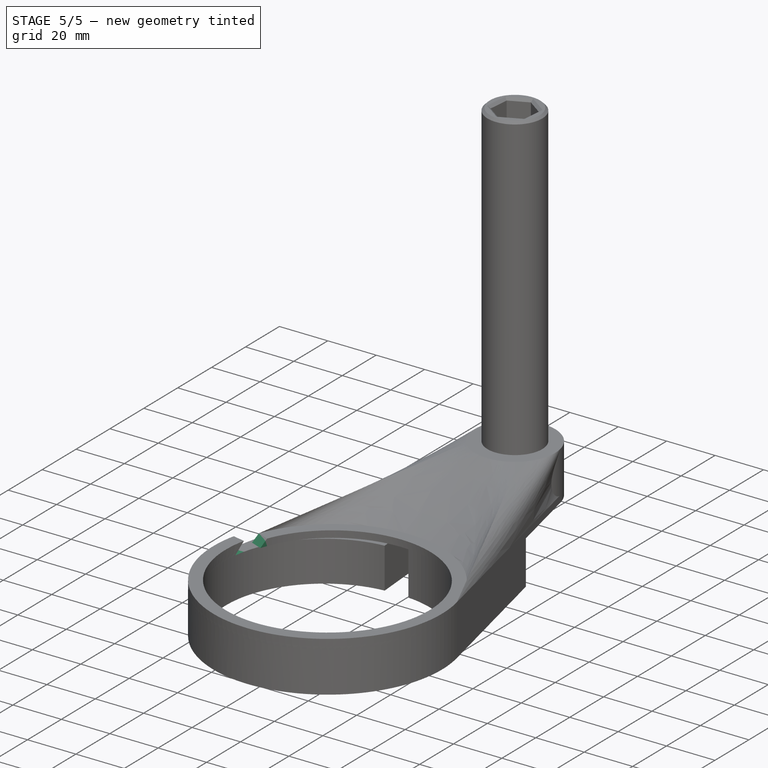
[diagram: stage 5 of 5 — iso view after this stage's code; geometry added in this stage tinted green]
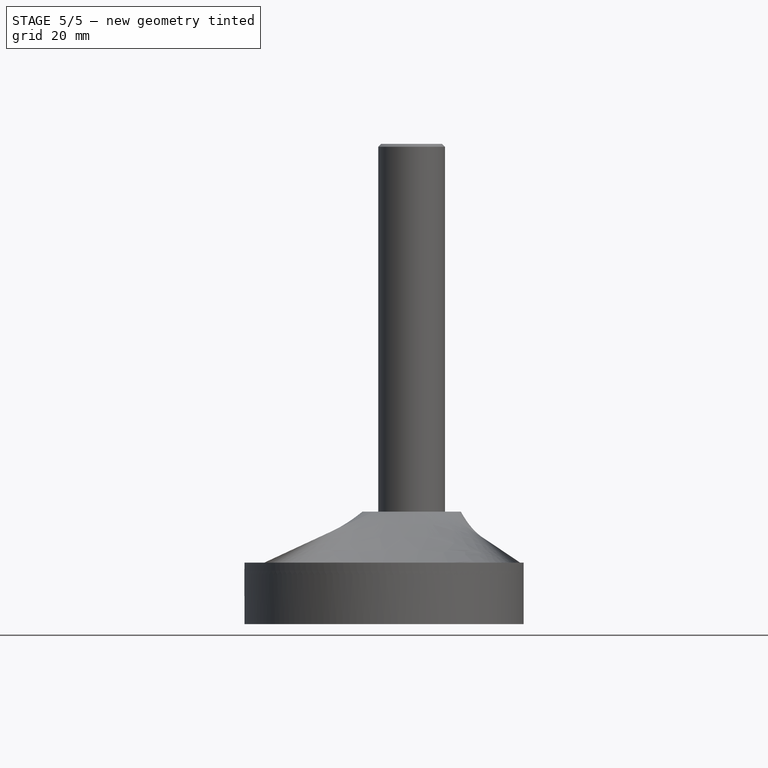
[diagram: stage 5 of 5 — front view after this stage's code; geometry added in this stage tinted green]
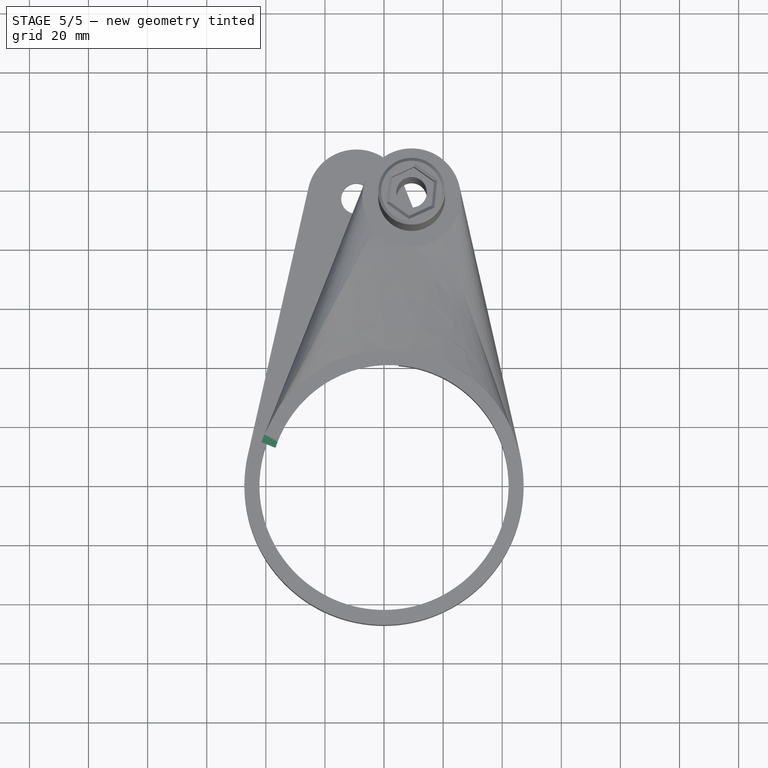
[diagram: stage 5 of 5 — top view after this stage's code; geometry added in this stage tinted green]
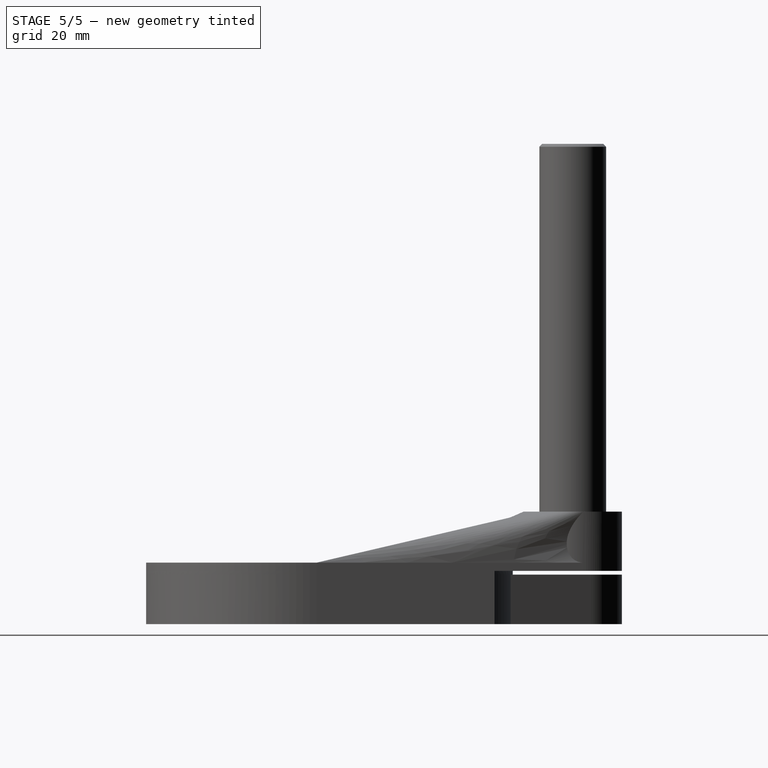
[diagram: stage 5 of 5 — right view after this stage's code; geometry added in this stage tinted green]
FEATURE [PartDesign::Chamfer] Chamfer
  Angle = 45
  Base = -> Pocket001 [Face61]
  BaseFeature = -> Pocket001
  ChamferType = 0
  FlipDirection = false
  Size = 1
  Size2 = 1
  SupportTransform = false
  UseAllEdges = false
FEATURE [Sketcher::SketchObject] Sketch017
  ExternalGeometry = -> [Chamfer]
  FullyConstrained = true
  MapMode = 5
  Placement = pos=(-40.8591,16.3296,0) rot=(-0.431915,0.63775,0.63775;3.95702rad)
  Support = -> [Chamfer]
  sketch-geometry (3):
    g0: LineSegment StartX=-1.00883 StartY=18.034 StartZ=0 EndX=1.78517 EndY=18.034 EndZ=0
    g1: LineSegment StartX=-1.00883 StartY=20.828 StartZ=0 EndX=1.78517 EndY=18.034 EndZ=0
    g2: LineSegment StartX=-1.00883 StartY=18.034 StartZ=0 EndX=-1.00883 EndY=20.828 EndZ=0
  constraints (7):
    c: Coincident(g-3,g0)
    c: Horizontal(g0)
    c: Coincident(g-3,g1)
    c: Coincident(g1,g0)
    c: Coincident(g0,g2)
    c: Coincident(g2,g1)
    c: Equal(g0,g2)
FEATURE [PartDesign::Pad] Pad007
  BaseFeature = -> Chamfer
  Direction = (-0.928586,0.371117,-1e-16)
  Length = 10.0076
  Length2 = 10.0076
  Profile = -> Sketch017
  ReferenceAxis = -> Sketch017 [N_Axis]
  Reversed = true
  Type = 3
  UpToFace = -> Chamfer [Face25]
FEATURE [Sketcher::SketchObject] Sketch018
  ExternalGeometry = -> [Pad007]
  FullyConstrained = true
  MapMode = 5
  Placement = pos=(-46.0723,10.4543,0) rot=(-0.491671,0.615735,0.615735;4.05552rad)
  Support = -> [Pad007]
  sketch-geometry (3):
    g0: LineSegment StartX=-3.6e-15 StartY=16.764 StartZ=0 EndX=4.064 EndY=16.764 EndZ=0
    g1: LineSegment StartX=4.064 StartY=16.764 StartZ=0 EndX=0 EndY=20.828 EndZ=0
    g2: LineSegment StartX=0 StartY=20.828 StartZ=0 EndX=-3.6e-15 EndY=16.764 EndZ=0
  constraints (8):
    c: Coincident(g-4,g0)
    c: Horizontal(g0)
    c: Coincident(g0,g1)
    c: PointOnObject(g1,g-2)
    c: Coincident(g1,g2)
    c: Coincident(g2,g0)
    c: Equal(g0,g2)
    c: PointOnObject(g-3,g1)
FEATURE [PartDesign::Pocket] Pocket002
  BaseFeature = -> Pad007
  Direction = (-0.975209,0.221285,0)
  Length = 0
  Length2 = 5
  Profile = -> Sketch018
  ReferenceAxis = -> Pad007 [Edge117]
  Type = 3
  UpToFace = -> Pad007 [Face42]
FEATURE [PartDesign::Body] Body
  Group = -> [Sketch001,Sketch,Pad,Sketch002,Pad001,Sketch003,Pocket,DatumLine,DatumLine001,Sketch004,Pad002,Sketch005,Groove,Sketch006,Groove001,Sketch007,Pad003,Sketch008,Pad004,Sketch010,Sketch011,Pad005,Sketch012,Pad006,Sketch013,AdditiveLoft,Sketch014,Hole,Sketch015,Hole001,Sketch016,Pocket001,Chamfer,Sketch017,Pad007,Sketch018,Pocket002]
  Origin = -> Origin
  Tip = -> Pocket002
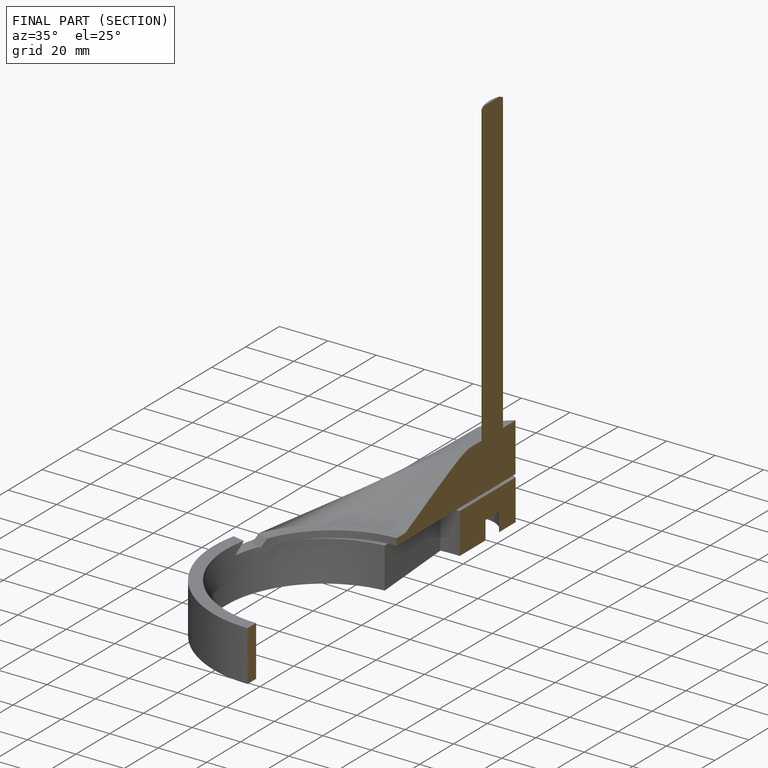
[diagram: finished part — half-section view (interior)]
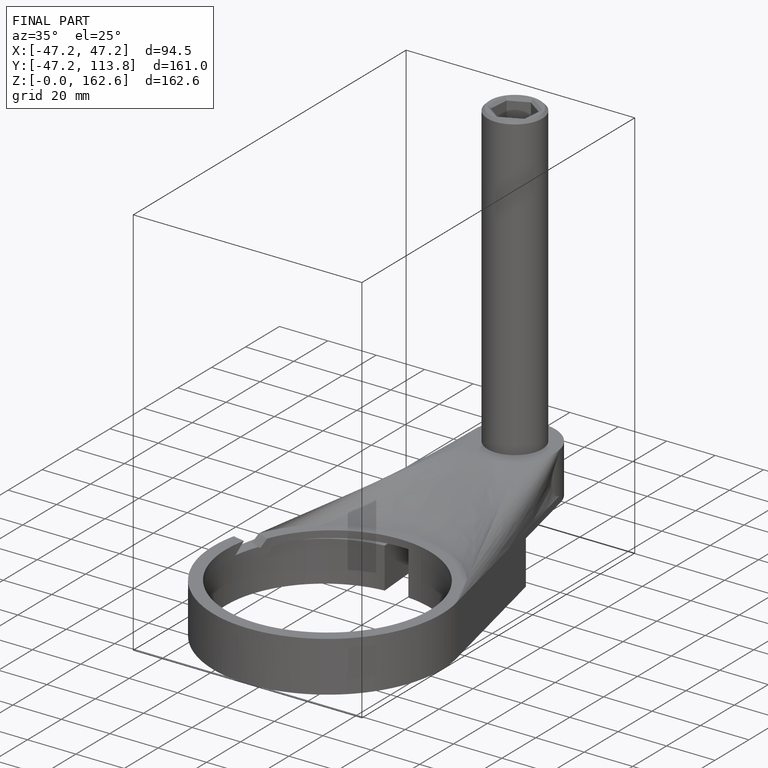
[diagram: finished part — iso view with bounding-box wireframe]
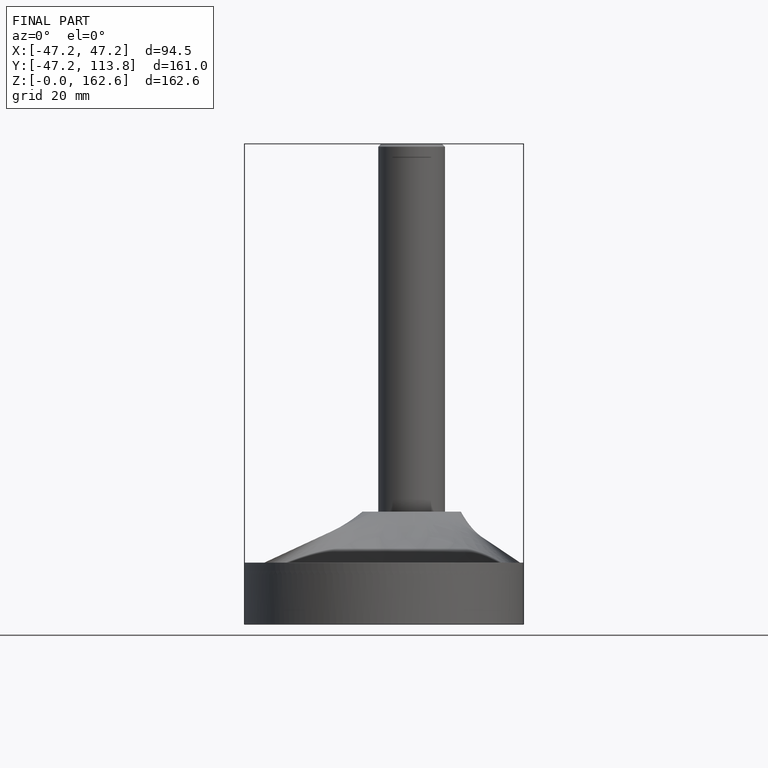
[diagram: finished part — front view with bounding-box wireframe]
